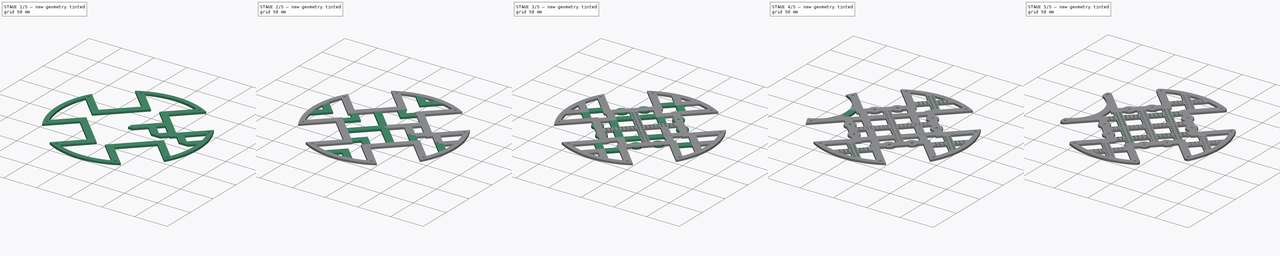
[diagram: build sequence overview — one tinted view per stage of 5, left to right]
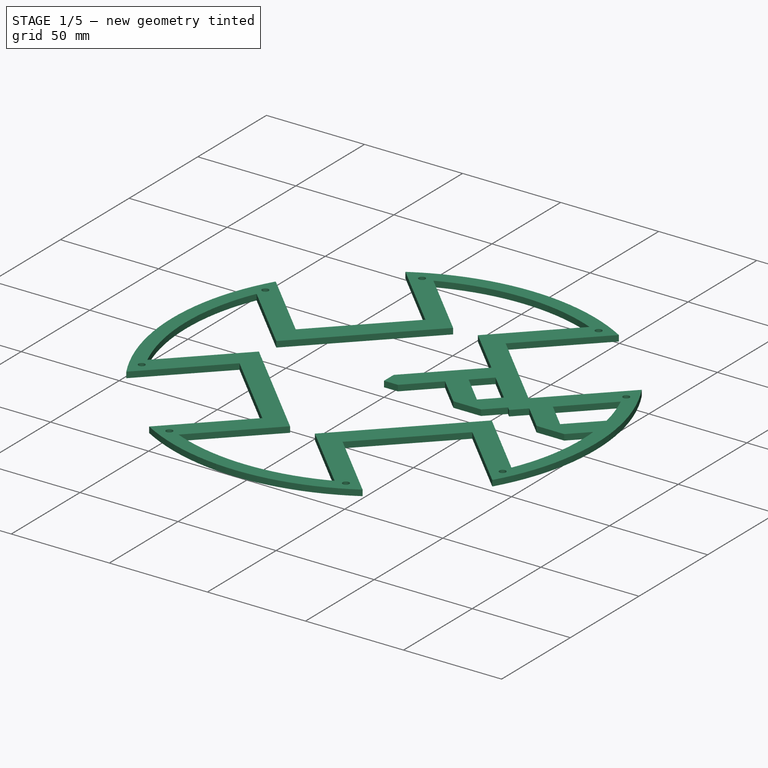
[diagram: stage 1 of 5 — iso view after this stage's code; geometry added in this stage tinted green]
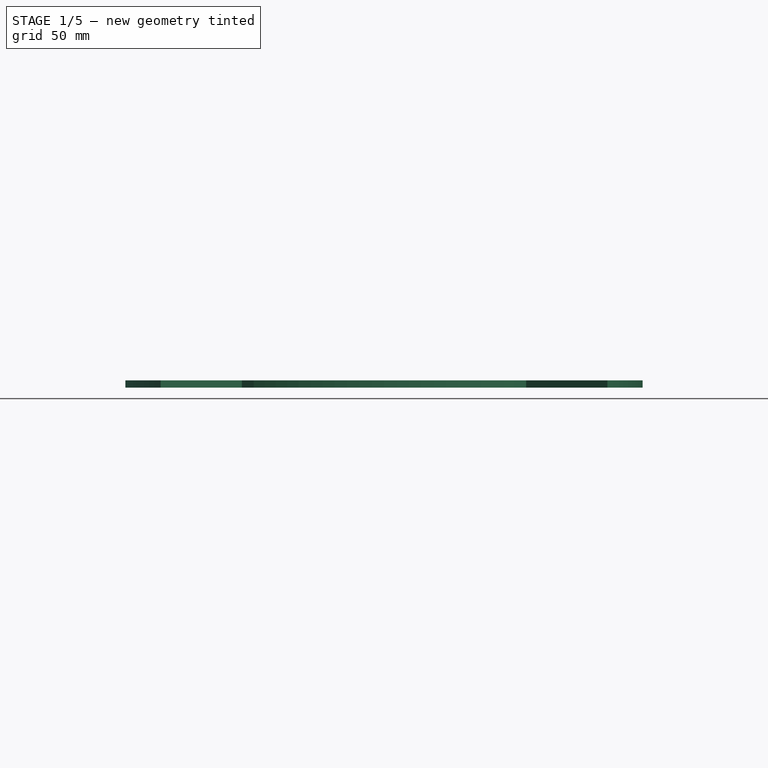
[diagram: stage 1 of 5 — front view after this stage's code; geometry added in this stage tinted green]
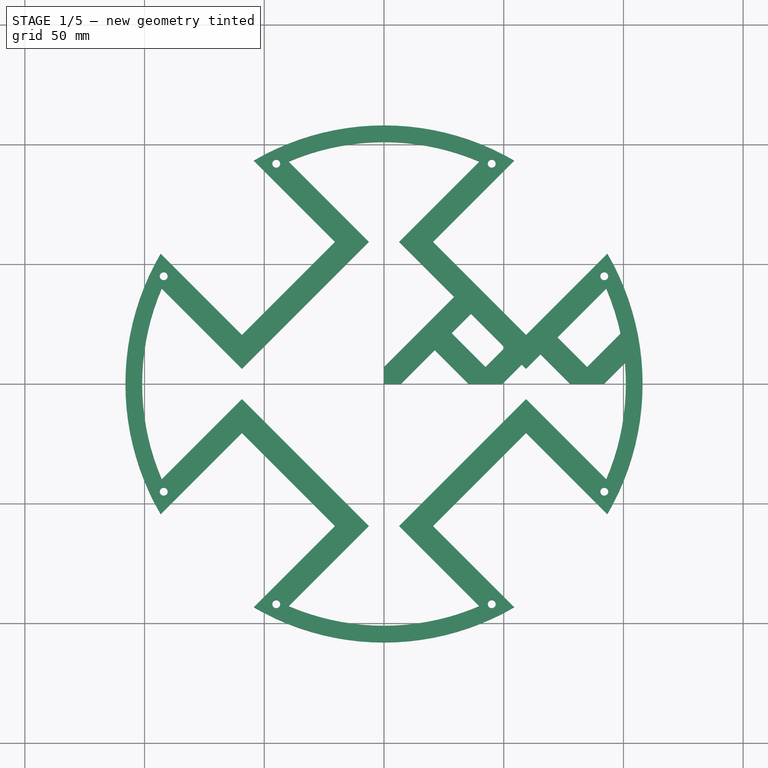
[diagram: stage 1 of 5 — top view after this stage's code; geometry added in this stage tinted green]
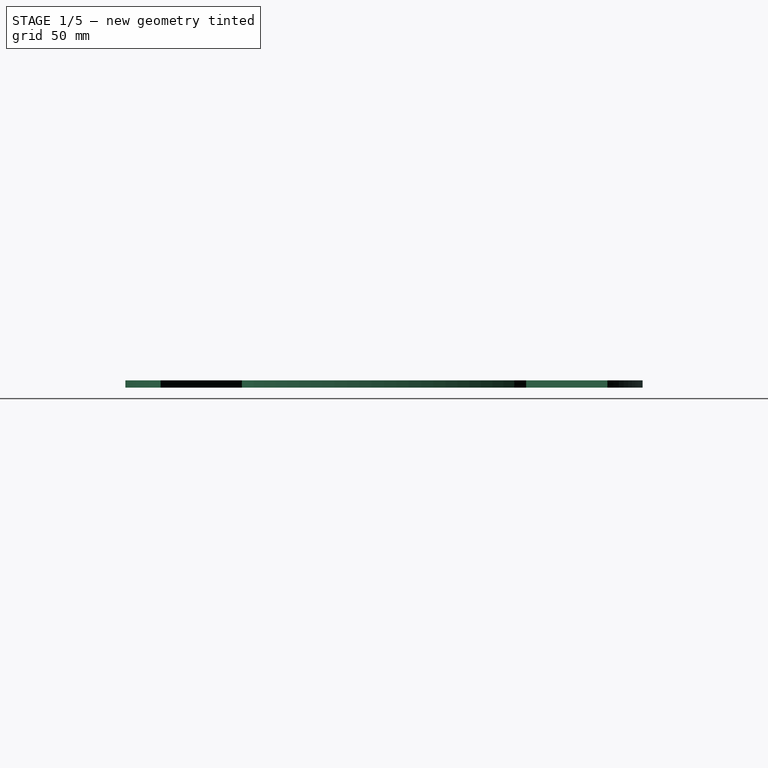
[diagram: stage 1 of 5 — right view after this stage's code; geometry added in this stage tinted green]
FCSTD DOCUMENT  (FreeCAD 0.18.4R)
Label: kat_soccer
License: All rights reserved
LicenseURL: http://en.wikipedia.org/wiki/All_rights_reserved
objects: Sketcher::SketchObject×22, PartDesign::MultiTransform×12, PartDesign::PolarPattern×11, PartDesign::Pocket×10, PartDesign::Mirrored×10, PartDesign::LinearPattern×9, PartDesign::Pad×5, PartDesign::Fillet×2, PartDesign::Body×1, App::MeasureDistance×1
note: 97 computed .brp shape members not serialized (recipe doc carries the construction recipe); baked Part::Feature solids carry a one-line shape summary decoded from their .brp

FEATURE [Sketcher::SketchObject] Sketch
  MapMode = 5
  Support = -> [XY_Plane]
  expr: Constraints[40] = 32 + 16
  expr: Constraints[42] = 2 * 27.5
  sketch-geometry (15):
    g0: LineSegment [constr] StartX=0 StartY=108 StartZ=0 EndX=0 EndY=0 EndZ=0
    g1: LineSegment [constr] StartX=0 StartY=0 StartZ=0 EndX=108 EndY=0 EndZ=0
    g2: ArcOfCircle CenterX=0 CenterY=0 CenterZ=0 NormalX=0 NormalY=0 NormalZ=1 AngleXU=0 Radius=108 StartAngle=1.04286 EndAngle=1.5708
    g3: ArcOfCircle CenterX=0 CenterY=0 CenterZ=0 NormalX=0 NormalY=0 NormalZ=1 AngleXU=0 Radius=108 StartAngle=0 EndAngle=0.527933
    g4: LineSegment StartX=54.4049 StartY=93.2958 StartZ=0 EndX=20.4638 EndY=59.3547 EndZ=0
    g5: LineSegment StartX=20.4638 StartY=59.3547 StartZ=0 EndX=59.3547 EndY=20.4638 EndZ=0
    g6: LineSegment StartX=59.3547 StartY=20.4638 StartZ=0 EndX=93.2958 EndY=54.4049 EndZ=0
    g7: LineSegment StartX=39.7962 StartY=92.8292 StartZ=0 EndX=6.32166 EndY=59.3547 EndZ=0
    g8: LineSegment StartX=6.32166 StartY=59.3547 StartZ=0 EndX=59.3547 EndY=6.32166 EndZ=0
    g9: LineSegment StartX=59.3547 StartY=6.32166 StartZ=0 EndX=92.8292 EndY=39.7962 EndZ=0
    g10: LineSegment StartX=108 StartY=0 StartZ=0 EndX=101 EndY=0 EndZ=0
    g11: LineSegment StartX=0 StartY=108 StartZ=0 EndX=0 EndY=101 EndZ=0
    g12: ArcOfCircle CenterX=0 CenterY=0 CenterZ=0 NormalX=0 NormalY=0 NormalZ=1 AngleXU=0 Radius=101 StartAngle=1.16579 EndAngle=1.5708
    g13: ArcOfCircle CenterX=0 CenterY=0 CenterZ=0 NormalX=0 NormalY=0 NormalZ=1 AngleXU=0 Radius=101 StartAngle=0 EndAngle=0.405003
    g14: LineSegment [constr] StartX=0 StartY=0 StartZ=0 EndX=141.421 EndY=141.421 EndZ=0
  constraints (43):
    c: Coincident(g0,g1)
    c: Coincident(g0,g-1)
    c: PointOnObject(g0,g-2)
    c: PointOnObject(g1,g-1)
    c: Coincident(g3,g2)
    c: Coincident(g3,g0)
    c: Coincident(g3,g1)
    c: Coincident(g2,g0)
    c: Equal(g1,g0)
    c: Coincident(g4,g5)
    c: Coincident(g5,g6)
    c: Coincident(g3,g6)
    c: Parallel(g6,g4)
    c: Coincident(g4,g2)
    c: Perpendicular(g5,g4)
    c: Coincident(g7,g8)
    c: Coincident(g8,g9)
    c: Coincident(g10,g3)
    c: Coincident(g10,g13)
    c: Coincident(g13,g9)
    c: Coincident(g13,g12)
    c: Coincident(g13,g2)
    c: Coincident(g7,g12)
    c: Coincident(g12,g11)
    c: Coincident(g2,g11)
    c: PointOnObject(g11,g0)
    c: PointOnObject(g10,g1)
    c: Parallel(g9,g6)
    c: Parallel(g7,g4)
    c: Parallel(g8,g5)
    c: Equal(g10,g11)
    c: Coincident(g14,g2)
    c: Angle(g14) = 0.785398
    c: Distance(g14) = 200
    c: Parallel(g6,g14)
    c: Symmetric(g3,g2,g14)
    c: Symmetric(g7,g9,g14)
    c: Distance(g4,g8) = 10
    c: Distance(g10) = 7
    c: Distance(g4,g7) = 10
    c: Distance(g6) = 48
    c: Distance(g0) = 108
    c: Distance(g5) = 55
FEATURE [PartDesign::Pad] Pad
  Length = 3
  Length2 = 100
  Profile = -> Sketch
  Type = 0
FEATURE [Sketcher::SketchObject] Sketch001
  MapMode = 5
  Placement = pos=(0,0,0) rot=(1,0,0;3.14159rad)
  Support = -> [Pad]
  sketch-geometry (17):
    g0: LineSegment StartX=0 StartY=0 StartZ=0 EndX=7.07107 EndY=0 EndZ=0
    g1: LineSegment StartX=7.07107 StartY=0 StartZ=0 EndX=36.7696 EndY=-29.6985 EndZ=0
    g2: LineSegment StartX=36.7696 StartY=-29.6985 StartZ=0 EndX=29.6985 EndY=-36.7696 EndZ=0
    g3: LineSegment StartX=29.6985 StartY=-36.7696 StartZ=0 EndX=0 EndY=-7.07107 EndZ=0
    g4: LineSegment StartX=0 StartY=-7.07107 StartZ=0 EndX=0 EndY=0 EndZ=0
    g5: LineSegment StartX=35.3553 StartY=0 StartZ=0 EndX=55.8614 EndY=-20.5061 EndZ=0
    g6: LineSegment StartX=55.8614 StartY=-20.5061 StartZ=0 EndX=62.9325 EndY=-13.435 EndZ=0
    g7: LineSegment StartX=62.9325 StartY=-13.435 StartZ=0 EndX=49.4975 EndY=0 EndZ=0
    g8: LineSegment StartX=49.4975 StartY=0 StartZ=0 EndX=35.3553 EndY=0 EndZ=0
    g9: LineSegment StartX=98.9949 StartY=-21.2132 StartZ=0 EndX=106.066 EndY=-14.1421 EndZ=0
    g10: LineSegment StartX=106.066 StartY=-14.1421 StartZ=0 EndX=91.9239 EndY=0 EndZ=0
    g11: LineSegment StartX=91.9239 StartY=0 StartZ=0 EndX=77.7817 EndY=0 EndZ=0
    g12: LineSegment StartX=77.7817 StartY=0 StartZ=0 EndX=98.9949 EndY=-21.2132 EndZ=0
    g13: LineSegment [constr] StartX=91.9239 StartY=0 StartZ=0 EndX=84.8528 EndY=-7.07107 EndZ=0
    g14: LineSegment [constr] StartX=21.2132 StartY=-14.1421 StartZ=0 EndX=35.3553 EndY=0 EndZ=0
    g15: LineSegment [constr] StartX=77.7817 StartY=0 StartZ=0 EndX=63.6396 EndY=-14.1421 EndZ=0
    g16: LineSegment [constr] StartX=0 StartY=0 StartZ=0 EndX=707.107 EndY=-707.107 EndZ=0
  constraints (50):
    c: Coincident(g0,g1)
    c: Coincident(g1,g2)
    c: Coincident(g2,g3)
    c: Coincident(g3,g4)
    c: Coincident(g4,g0)
    c: Coincident(g4,g-1)
    c: PointOnObject(g0,g-1)
    c: PointOnObject(g3,g-2)
    c: Parallel(g1,g3)
    c: Perpendicular(g3,g2)
    c: Angle(g1) = -0.785398
    c: Equal(g0,g4)
    c: Distance(g2) = 10
    c: Distance(g1) = 42
    c: Coincident(g5,g6)
    c: Coincident(g6,g7)
    c: Coincident(g7,g8)
    c: Coincident(g5,g8)
    c: PointOnObject(g5,g-1)
    c: PointOnObject(g7,g-1)
    c: Parallel(g7,g5)
    c: Parallel(g5,g1)
    c: Parallel(g6,g2)
    c: Coincident(g12,g9)
    c: Coincident(g9,g10)
    c: Coincident(g10,g11)
    c: Coincident(g12,g11)
    c: PointOnObject(g11,g-1)
    c: PointOnObject(g10,g-1)
    c: Parallel(g10,g12)
    c: Parallel(g12,g7)
    c: Coincident(g13,g10)
    c: PointOnObject(g13,g12)
    c: Perpendicular(g12,g13)
    c: Equal(g13,g6)
    c: Equal(g6,g2)
    c: Coincident(g14,g5)
    c: PointOnObject(g14,g1)
    c: Perpendicular(g14,g5)
    c: PointOnObject(g15,g7)
    c: Coincident(g15,g11)
    c: Perpendicular(g7,g15)
    c: Coincident(g16,g0)
    c: Distance(g16) = 1000
    c: Parallel(g16,g1)
    c: Equal(g15,g14)
    c: Distance(g14) = 20
    c: Distance(g7) = 19
    c: Distance(g10) = 20
    c: Parallel(g9,g6)
FEATURE [PartDesign::Pad] Pad001
  BaseFeature = -> Pad
  Length = 3
  Length2 = 100
  Profile = -> Sketch001
  Reversed = true
  Type = 0
FEATURE [Sketcher::SketchObject] Sketch002
  MapMode = 5
  Placement = pos=(0,0,0) rot=(1,0,0;3.14159rad)
  Support = -> [Pad001]
  expr: Constraints[37] = 1 / 2 * 10 + 20
  sketch-geometry (19):
    g0: LineSegment [constr] StartX=0 StartY=0 StartZ=0 EndX=707.107 EndY=-707.107 EndZ=0
    g1: LineSegment StartX=35.3553 StartY=0 StartZ=0 EndX=17.6777 EndY=-17.6777 EndZ=0
    g2: LineSegment StartX=17.6777 StartY=-17.6777 StartZ=0 EndX=24.7487 EndY=-24.7487 EndZ=0
    g3: LineSegment StartX=24.7487 StartY=-24.7487 StartZ=0 EndX=49.4975 EndY=0 EndZ=0
    g4: LineSegment StartX=49.4975 StartY=0 StartZ=0 EndX=35.3553 EndY=0 EndZ=0
    g5: LineSegment StartX=77.7817 StartY=0 StartZ=0 EndX=63.6396 EndY=-14.1421 EndZ=0
    g6: LineSegment StartX=63.6396 StartY=-14.1421 StartZ=0 EndX=70.7107 EndY=-21.2132 EndZ=0
    g7: LineSegment StartX=70.7107 StartY=-21.2132 StartZ=0 EndX=91.9239 EndY=0 EndZ=0
    g8: LineSegment StartX=91.9239 StartY=0 StartZ=0 EndX=77.7817 EndY=0 EndZ=0
    g9: LineSegment [constr] StartX=94.7523 StartY=-25.4558 StartZ=0 EndX=101.823 EndY=-32.5269 EndZ=0
    g10: LineSegment [constr] StartX=101.823 StartY=-32.5269 StartZ=0 EndX=134.35 EndY=0 EndZ=0
    g11: LineSegment [constr] StartX=134.35 StartY=0 StartZ=0 EndX=120.208 EndY=0 EndZ=0
    g12: LineSegment [constr] StartX=49.4975 StartY=0 StartZ=0 EndX=63.6396 EndY=-14.1421 EndZ=0
    g13: LineSegment [constr] StartX=91.9239 StartY=0 StartZ=0 EndX=106.066 EndY=-14.1421 EndZ=0
    g14: LineSegment [constr] StartX=0 StartY=0 StartZ=0 EndX=17.6777 EndY=-17.6777 EndZ=0
    g15: LineSegment [constr] StartX=94.7523 StartY=-25.4558 StartZ=0 EndX=120.208 EndY=0 EndZ=0
    g16: LineSegment [constr] StartX=94.7523 StartY=-25.4558 StartZ=0 EndX=120.208 EndY=0 EndZ=0
    g17: LineSegment [constr] StartX=120.208 StartY=0 StartZ=0 EndX=120.208 EndY=-14.1421 EndZ=0
    g18: LineSegment [constr] StartX=120.208 StartY=-14.1421 StartZ=0 EndX=101.823 EndY=-32.5269 EndZ=0
  constraints (54):
    c: Coincident(g0,g-1)
    c: Angle(g0) = -0.785398
    c: Distance(g0) = 1000
    c: Coincident(g1,g2)
    c: Coincident(g2,g3)
    c: Coincident(g3,g4)
    c: Coincident(g4,g1)
    c: PointOnObject(g1,g-1)
    c: PointOnObject(g3,g-1)
    c: PointOnObject(g2,g0)
    c: PointOnObject(g1,g0)
    c: Parallel(g1,g3)
    c: Perpendicular(g0,g1)
    c: Coincident(g5,g6)
    c: Coincident(g6,g7)
    c: Coincident(g7,g8)
    c: Coincident(g8,g5)
    c: Parallel(g5,g7)
    c: PointOnObject(g5,g-1)
    c: PointOnObject(g7,g-1)
    c: Perpendicular(g0,g7)
    c: Coincident(g9,g10)
    c: Coincident(g10,g11)
    c: PointOnObject(g10,g-1)
    c: PointOnObject(g11,g-1)
    c: Perpendicular(g9,g10)
    c: Parallel(g9,g0)
    c: Equal(g9,g6)
    c: Equal(g6,g2)
    c: Coincident(g12,g3)
    c: PointOnObject(g12,g5)
    c: Coincident(g13,g7)
    c: Perpendicular(g5,g12)
    c: Equal(g13,g12)
    c: Distance(g12) = 20
    c: Distance(g9) = 10
    c: Coincident(g14,g1)
    c: Distance(g14) = 25
    c: Coincident(g14,g-1)
    c: Coincident(g15,g11)
    c: Coincident(g9,g15)
    c: PointOnObject(g13,g15)
    c: Parallel(g15,g7)
    c: Perpendicular(g15,g13)
    c: Coincident(g16,g17)
    c: Coincident(g17,g18)
    c: Coincident(g18,g9)
    c: Coincident(g9,g16)
    c: Coincident(g11,g16)
    c: PointOnObject(g17,g10)
    c: Vertical(g17)
    c: Distance(g18) = 26
    c: Distance(g7) = 30
    c: Perpendicular(g7,g6)
FEATURE [PartDesign::Pad] Pad002
  BaseFeature = -> Pad001
  Length = 3
  Length2 = 100
  Profile = -> Sketch002
  Reversed = true
  Type = 0
FEATURE [PartDesign::PolarPattern] PolarPattern
  Angle = 360
  Axis = -> Sketch [N_Axis]
  BaseFeature = -> Pad002
  Occurrences = 4
  Originals = -> [Pad]
FEATURE [Sketcher::SketchObject] Sketch005
  MapMode = 5
  Placement = pos=(0,0,3) rot=(0,0,1;0rad)
  sketch-geometry (6):
    g0: ArcOfCircle CenterX=-115.233 CenterY=1e-15 CenterZ=0 NormalX=0 NormalY=0 NormalZ=1 AngleXU=0 Radius=43.7757 StartAngle=5.08106 EndAngle=7.48531
    g1: LineSegment [constr] StartX=-99.4569 StartY=40.8343 StartZ=0 EndX=-99.4569 EndY=-40.8343 EndZ=0
    g2: LineSegment [constr] StartX=-99.4569 StartY=0 StartZ=0 EndX=-71.4569 EndY=0 EndZ=0
    g3: LineSegment StartX=-99.4569 StartY=40.8343 StartZ=0 EndX=-181.126 EndY=40.8343 EndZ=0
    g4: LineSegment StartX=-181.126 StartY=40.8343 StartZ=0 EndX=-181.126 EndY=-40.8343 EndZ=0
    g5: LineSegment StartX=-181.126 StartY=-40.8343 StartZ=0 EndX=-99.4569 EndY=-40.8343 EndZ=0
  constraints (17):
    c: Symmetric(g0,g0,g-1)
    c: Coincident(g1,g0)
    c: Coincident(g0,g1)
    c: PointOnObject(g2,g0)
    c: PointOnObject(g2,g1)
    c: PointOnObject(g2,g-1)
    c: PointOnObject(g2,g-1)
    c: Distance(g2) = 28
    c: Coincident(g3,g4)
    c: Coincident(g4,g5)
    c: Coincident(g5,g0)
    c: Coincident(g0,g3)
    c: Symmetric(g3,g4,g-1)
    c: Parallel(g5,g3)
    c: DistanceX(g0) = -99.4569
    c: DistanceY(g0) = 40.8343
    c: Equal(g3,g4)
FEATURE [Sketcher::SketchObject] Sketch006
  MapMode = 5
  Placement = pos=(0,0,3) rot=(0,0,1;0rad)
  sketch-geometry (6):
    g0: ArcOfCircle CenterX=-115.233 CenterY=-2.3e-15 CenterZ=0 NormalX=0 NormalY=0 NormalZ=1 AngleXU=0 Radius=43.7757 StartAngle=5.08106 EndAngle=7.48531
    g1: LineSegment [constr] StartX=-99.4569 StartY=40.8343 StartZ=0 EndX=-99.4569 EndY=-40.8343 EndZ=0
    g2: LineSegment [constr] StartX=-99.4569 StartY=0 StartZ=0 EndX=-71.4569 EndY=0 EndZ=0
    g3: ArcOfCircle CenterX=-115.233 CenterY=-2.3e-15 CenterZ=0 NormalX=0 NormalY=0 NormalZ=1 AngleXU=0 Radius=52.9928 StartAngle=5.40346 EndAngle=7.16291
    g4: LineSegment StartX=-99.4569 StartY=-40.8343 StartZ=0 EndX=-81.4569 EndY=-40.8343 EndZ=0
    g5: LineSegment StartX=-99.4569 StartY=40.8343 StartZ=0 EndX=-81.4569 EndY=40.8343 EndZ=0
  constraints (18):
    c: Symmetric(g0,g0,g-1)
    c: Coincident(g1,g0)
    c: Coincident(g0,g1)
    c: PointOnObject(g2,g0)
    c: PointOnObject(g2,g1)
    c: PointOnObject(g2,g-1)
    c: PointOnObject(g2,g-1)
    c: Distance(g2) = 28
    c: DistanceX(g0) = -99.4569
    c: DistanceY(g0) = 40.8343
    c: Coincident(g3,g0)
    c: Coincident(g4,g3)
    c: Coincident(g4,g0)
    c: Horizontal(g4)
    c: Coincident(g5,g3)
    c: Coincident(g5,g0)
    c: Horizontal(g5)
    c: Distance(g5) = 18
FEATURE [Sketcher::SketchObject] CopySketch006
  Placement = pos=(0,0,3) rot=(0,0,1;0rad)
  sketch-geometry (6):
    g0: ArcOfCircle CenterX=-115.233 CenterY=2.4e-15 CenterZ=0 NormalX=0 NormalY=0 NormalZ=1 AngleXU=0 Radius=43.7757 StartAngle=5.08106 EndAngle=7.48531
    g1: LineSegment [constr] StartX=-99.4569 StartY=40.8343 StartZ=0 EndX=-99.4569 EndY=-40.8343 EndZ=0
    g2: LineSegment [constr] StartX=-99.4569 StartY=0 StartZ=0 EndX=-71.4569 EndY=0 EndZ=0
    g3: ArcOfCircle CenterX=-115.233 CenterY=2.4e-15 CenterZ=0 NormalX=0 NormalY=0 NormalZ=1 AngleXU=0 Radius=52.9928 StartAngle=5.40346 EndAngle=7.16291
    g4: LineSegment StartX=-99.4569 StartY=-40.8343 StartZ=0 EndX=-81.4569 EndY=-40.8343 EndZ=0
    g5: LineSegment StartX=-99.4569 StartY=40.8343 StartZ=0 EndX=-81.4569 EndY=40.8343 EndZ=0
  constraints (18):
    c: Symmetric(g0,g0,g-1)
    c: Coincident(g1,g0)
    c: Coincident(g0,g1)
    c: PointOnObject(g2,g0)
    c: PointOnObject(g2,g1)
    c: PointOnObject(g2,g-1)
    c: PointOnObject(g2,g-1)
    c: Distance(g2) = 28
    c: DistanceX(g0) = -99.4569
    c: DistanceY(g0) = 40.8343
    c: Coincident(g3,g0)
    c: Coincident(g4,g3)
    c: Coincident(g4,g0)
    c: Horizontal(g4)
    c: Coincident(g5,g3)
    c: Coincident(g5,g0)
    c: Horizontal(g5)
    c: Distance(g5) = 18
FEATURE [Sketcher::SketchObject] Sketch008
  MapMode = 5
  Placement = pos=(0,0,3) rot=(0,0,1;0rad)
  sketch-geometry (1):
    g0: Circle CenterX=92 CenterY=45 CenterZ=0 NormalX=0 NormalY=0 NormalZ=1 AngleXU=0 Radius=1.65
  constraints (3):
    c: DistanceX(g0) = 92
    c: DistanceY(g0) = 45
    c: Radius(g0) = 1.65
FEATURE [PartDesign::Pocket] Pocket
  BaseFeature = -> PolarPattern
  Length = 5
  Length2 = 100
  Profile = -> Sketch008
  Type = 0
FEATURE [PartDesign::Mirrored] Mirrored
  MirrorPlane = -> Sketch008 [V_Axis]
FEATURE [PartDesign::PolarPattern] PolarPattern001
  Angle = 360
  Axis = -> Sketch008 [N_Axis]
  Occurrences = 4
FEATURE [PartDesign::MultiTransform] MultiTransform
  BaseFeature = -> Pocket
  Originals = -> [Pocket]
  Transformations = -> [Mirrored,PolarPattern001]
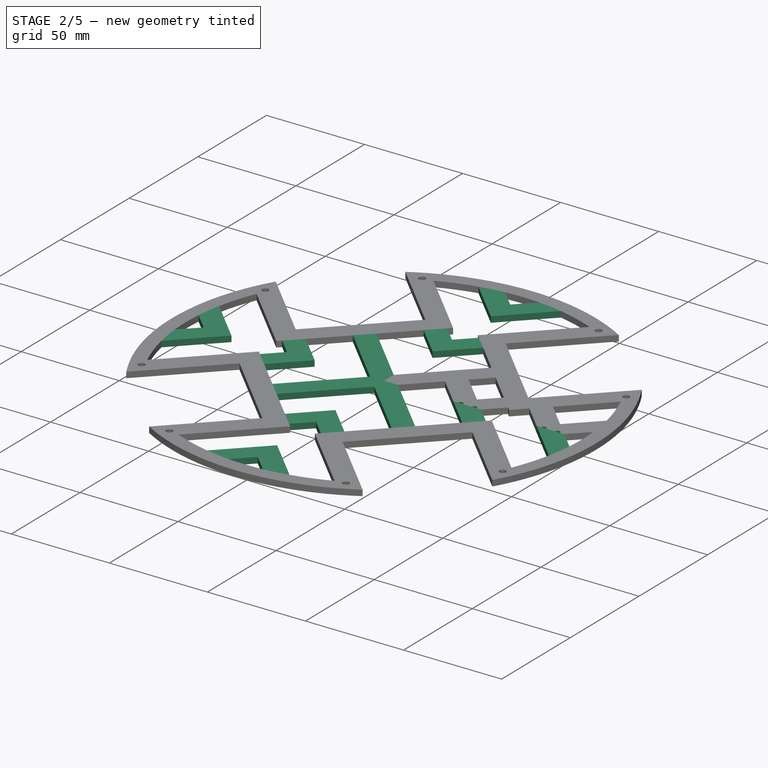
[diagram: stage 2 of 5 — iso view after this stage's code; geometry added in this stage tinted green]
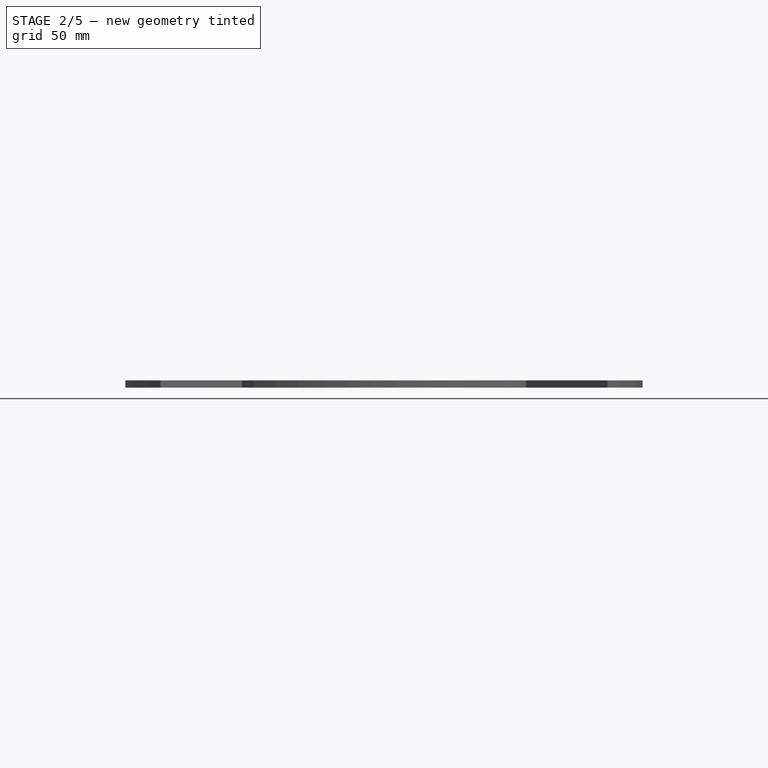
[diagram: stage 2 of 5 — front view after this stage's code; geometry added in this stage tinted green]
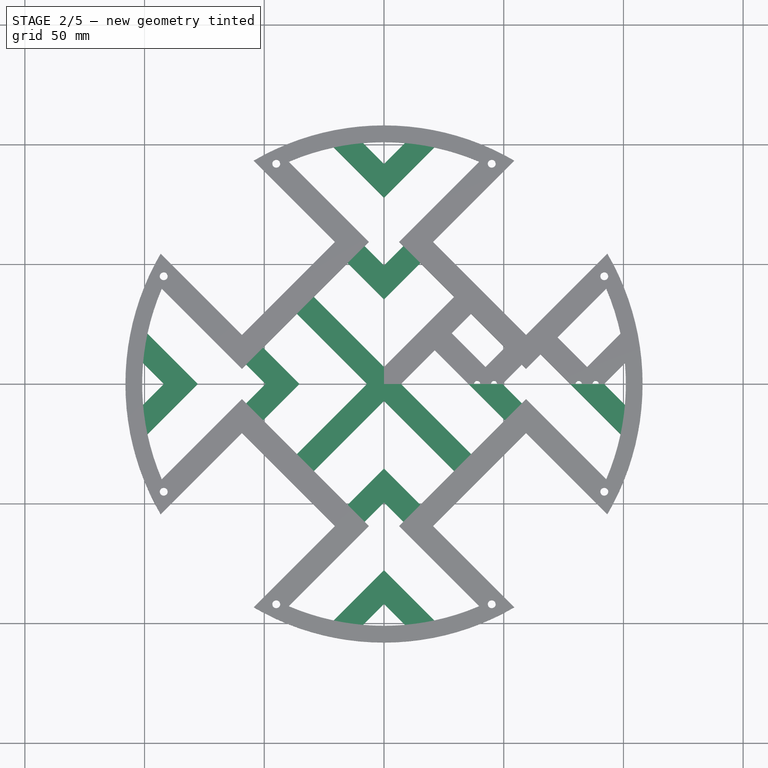
[diagram: stage 2 of 5 — top view after this stage's code; geometry added in this stage tinted green]
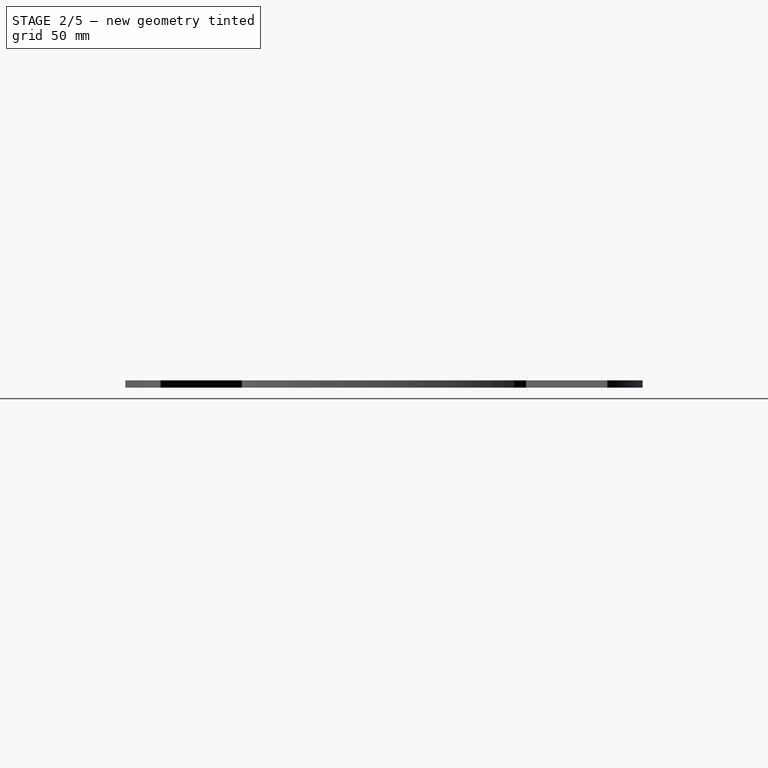
[diagram: stage 2 of 5 — right view after this stage's code; geometry added in this stage tinted green]
FEATURE [Sketcher::SketchObject] Sketch009
  MapMode = 5
  Placement = pos=(0,0,0) rot=(1,0,0;3.14159rad)
  Support = -> [Pad]
  expr: Constraints[51] = 2.5 * sqrt(2)
  sketch-geometry (18):
    g0: LineSegment [constr] StartX=0 StartY=0 StartZ=0 EndX=7.07107 EndY=0 EndZ=0
    g1: LineSegment [constr] StartX=7.07107 StartY=0 StartZ=0 EndX=48.0833 EndY=-41.0122 EndZ=0
    g2: LineSegment [constr] StartX=48.0833 StartY=-41.0122 StartZ=0 EndX=41.0122 EndY=-48.0833 EndZ=0
    g3: LineSegment [constr] StartX=41.0122 StartY=-48.0833 StartZ=0 EndX=0 EndY=-7.07107 EndZ=0
    g4: LineSegment [constr] StartX=0 StartY=-7.07107 StartZ=0 EndX=0 EndY=0 EndZ=0
    g5: LineSegment [constr] StartX=35.3553 StartY=0 StartZ=0 EndX=67.1751 EndY=-31.8198 EndZ=0
    g6: LineSegment [constr] StartX=67.1751 StartY=-31.8198 StartZ=0 EndX=74.2462 EndY=-24.7487 EndZ=0
    g7: LineSegment [constr] StartX=74.2462 StartY=-24.7487 StartZ=0 EndX=49.4975 EndY=0 EndZ=0
    g8: LineSegment [constr] StartX=49.4975 StartY=0 StartZ=0 EndX=35.3553 EndY=0 EndZ=0
    g9: LineSegment [constr] StartX=98.9949 StartY=-21.2132 StartZ=0 EndX=106.066 EndY=-14.1421 EndZ=0
    g10: LineSegment [constr] StartX=106.066 StartY=-14.1421 StartZ=0 EndX=91.9239 EndY=0 EndZ=0
    g11: LineSegment [constr] StartX=91.9239 StartY=0 StartZ=0 EndX=77.7817 EndY=0 EndZ=0
    g12: LineSegment [constr] StartX=77.7817 StartY=0 StartZ=0 EndX=98.9949 EndY=-21.2132 EndZ=0
    g13: LineSegment [constr] StartX=91.9239 StartY=0 StartZ=0 EndX=84.8528 EndY=-7.07107 EndZ=0
    g14: LineSegment [constr] StartX=21.2132 StartY=-14.1421 StartZ=0 EndX=35.3553 EndY=0 EndZ=0
    g15: LineSegment [constr] StartX=77.7817 StartY=0 StartZ=0 EndX=63.6396 EndY=-14.1421 EndZ=0
    g16: LineSegment [constr] StartX=0 StartY=0 StartZ=0 EndX=707.107 EndY=-707.107 EndZ=0
    g17: Circle CenterX=3.53553 CenterY=-8.163e-13 CenterZ=0 NormalX=0 NormalY=0 NormalZ=1 AngleXU=0 Radius=1.3
  constraints (53):
    c: Coincident(g0,g1)
    c: Coincident(g1,g2)
    c: Coincident(g2,g3)
    c: Coincident(g3,g4)
    c: Coincident(g4,g0)
    c: Coincident(g4,g-1)
    c: PointOnObject(g0,g-1)
    c: PointOnObject(g3,g-2)
    c: Parallel(g1,g3)
    c: Perpendicular(g3,g2)
    c: Angle(g1) = -0.785398
    c: Equal(g0,g4)
    c: Distance(g2) = 10
    c: Distance(g1) = 58
    c: Coincident(g5,g6)
    c: Coincident(g6,g7)
    c: Coincident(g7,g8)
    c: Coincident(g5,g8)
    c: PointOnObject(g5,g-1)
    c: PointOnObject(g7,g-1)
    c: Parallel(g7,g5)
    c: Parallel(g5,g1)
    c: Parallel(g6,g2)
    c: Coincident(g12,g9)
    c: Coincident(g9,g10)
    c: Coincident(g10,g11)
    c: Coincident(g12,g11)
    c: PointOnObject(g11,g-1)
    c: PointOnObject(g10,g-1)
    c: Parallel(g10,g12)
    c: Parallel(g12,g7)
    c: Coincident(g13,g10)
    c: PointOnObject(g13,g12)
    c: Perpendicular(g12,g13)
    c: Equal(g13,g6)
    c: Equal(g6,g2)
    c: Coincident(g14,g5)
    c: PointOnObject(g14,g1)
    c: Perpendicular(g14,g5)
    c: PointOnObject(g15,g7)
    c: Coincident(g15,g11)
    c: Perpendicular(g7,g15)
    c: Coincident(g16,g0)
    c: Distance(g16) = 1000
    c: Parallel(g16,g1)
    c: Equal(g15,g14)
    c: Distance(g14) = 20
    c: Distance(g7) = 35
    c: Distance(g10) = 20
    c: Parallel(g9,g6)
    c: PointOnObject(g17,g0)
    c: DistanceX(g17) = 3.53553
    c: Radius(g17) = 1.3
FEATURE [Sketcher::SketchObject] CopySketch009
  Placement = pos=(0,0,0) rot=(1,0,0;3.14159rad)
  expr: Constraints[51] = 2.5 * sqrt(2)
  sketch-geometry (19):
    g0: LineSegment [constr] StartX=0 StartY=0 StartZ=0 EndX=7.07107 EndY=0 EndZ=0
    g1: LineSegment [constr] StartX=7.07107 StartY=0 StartZ=0 EndX=48.0833 EndY=-41.0122 EndZ=0
    g2: LineSegment [constr] StartX=48.0833 StartY=-41.0122 StartZ=0 EndX=41.0122 EndY=-48.0833 EndZ=0
    g3: LineSegment [constr] StartX=41.0122 StartY=-48.0833 StartZ=0 EndX=0 EndY=-7.07107 EndZ=0
    g4: LineSegment [constr] StartX=0 StartY=-7.07107 StartZ=0 EndX=0 EndY=0 EndZ=0
    g5: LineSegment [constr] StartX=35.3553 StartY=0 StartZ=0 EndX=67.1751 EndY=-31.8198 EndZ=0
    g6: LineSegment [constr] StartX=67.1751 StartY=-31.8198 StartZ=0 EndX=74.2462 EndY=-24.7487 EndZ=0
    g7: LineSegment [constr] StartX=74.2462 StartY=-24.7487 StartZ=0 EndX=49.4975 EndY=0 EndZ=0
    g8: LineSegment [constr] StartX=49.4975 StartY=0 StartZ=0 EndX=35.3553 EndY=0 EndZ=0
    g9: LineSegment [constr] StartX=98.9949 StartY=-21.2132 StartZ=0 EndX=106.066 EndY=-14.1421 EndZ=0
    g10: LineSegment [constr] StartX=106.066 StartY=-14.1421 StartZ=0 EndX=91.9239 EndY=0 EndZ=0
    g11: LineSegment [constr] StartX=91.9239 StartY=0 StartZ=0 EndX=77.7817 EndY=0 EndZ=0
    g12: LineSegment [constr] StartX=77.7817 StartY=0 StartZ=0 EndX=98.9949 EndY=-21.2132 EndZ=0
    g13: LineSegment [constr] StartX=91.9239 StartY=0 StartZ=0 EndX=84.8528 EndY=-7.07107 EndZ=0
    g14: LineSegment [constr] StartX=21.2132 StartY=-14.1421 StartZ=0 EndX=35.3553 EndY=0 EndZ=0
    g15: LineSegment [constr] StartX=77.7817 StartY=0 StartZ=0 EndX=63.6396 EndY=-14.1421 EndZ=0
    g16: LineSegment [constr] StartX=0 StartY=0 StartZ=0 EndX=707.107 EndY=-707.107 EndZ=0
    g17: Circle CenterX=3.53553 CenterY=0 CenterZ=0 NormalX=0 NormalY=0 NormalZ=1 AngleXU=0 Radius=1.3
    g18: LineSegment [constr] StartX=3.53553 StartY=0 StartZ=0 EndX=10.6066 EndY=-7.07107 EndZ=0
  constraints (56):
    c: Coincident(g0,g1)
    c: Coincident(g1,g2)
    c: Coincident(g2,g3)
    c: Coincident(g3,g4)
    c: Coincident(g4,g0)
    c: Coincident(g4,g-1)
    c: PointOnObject(g0,g-1)
    c: PointOnObject(g3,g-2)
    c: Parallel(g1,g3)
    c: Perpendicular(g3,g2)
    c: Angle(g1) = -0.785398
    c: Equal(g0,g4)
    c: Distance(g2) = 10
    c: Distance(g1) = 58
    c: Coincident(g5,g6)
    c: Coincident(g6,g7)
    c: Coincident(g7,g8)
    c: Coincident(g5,g8)
    c: PointOnObject(g5,g-1)
    c: PointOnObject(g7,g-1)
    c: Parallel(g7,g5)
    c: Parallel(g5,g1)
    c: Parallel(g6,g2)
    c: Coincident(g12,g9)
    c: Coincident(g9,g10)
    c: Coincident(g10,g11)
    c: Coincident(g12,g11)
    c: PointOnObject(g11,g-1)
    c: PointOnObject(g10,g-1)
    c: Parallel(g10,g12)
    c: Parallel(g12,g7)
    c: Coincident(g13,g10)
    c: PointOnObject(g13,g12)
    c: Perpendicular(g12,g13)
    c: Equal(g13,g6)
    c: Equal(g6,g2)
    c: Coincident(g14,g5)
    c: PointOnObject(g14,g1)
    c: Perpendicular(g14,g5)
    c: PointOnObject(g15,g7)
    c: Coincident(g15,g11)
    c: Perpendicular(g7,g15)
    c: Coincident(g16,g0)
    c: Distance(g16) = 1000
    c: Parallel(g16,g1)
    c: Equal(g15,g14)
    c: Distance(g14) = 20
    c: Distance(g7) = 35
    c: Distance(g10) = 20
    c: Parallel(g9,g6)
    c: PointOnObject(g17,g0)
    c: DistanceX(g17) = 3.53553
    c: Radius(g17) = 1.3
    c: Coincident(g18,g17)
    c: Parallel(g18,g16)
    c: Distance(g18) = 10
FEATURE [Sketcher::SketchObject] CopyCopySketch009
  Placement = pos=(0,0,0) rot=(1,0,0;3.14159rad)
  expr: Constraints[51] = 2.5 * sqrt(2)
  sketch-geometry (19):
    g0: LineSegment [constr] StartX=0 StartY=0 StartZ=0 EndX=7.07107 EndY=0 EndZ=0
    g1: LineSegment [constr] StartX=7.07107 StartY=0 StartZ=0 EndX=48.0833 EndY=-41.0122 EndZ=0
    g2: LineSegment [constr] StartX=48.0833 StartY=-41.0122 StartZ=0 EndX=41.0122 EndY=-48.0833 EndZ=0
    g3: LineSegment [constr] StartX=41.0122 StartY=-48.0833 StartZ=0 EndX=0 EndY=-7.07107 EndZ=0
    g4: LineSegment [constr] StartX=0 StartY=-7.07107 StartZ=0 EndX=0 EndY=0 EndZ=0
    g5: LineSegment [constr] StartX=35.3553 StartY=0 StartZ=0 EndX=67.1751 EndY=-31.8198 EndZ=0
    g6: LineSegment [constr] StartX=67.1751 StartY=-31.8198 StartZ=0 EndX=74.2462 EndY=-24.7487 EndZ=0
    g7: LineSegment [constr] StartX=74.2462 StartY=-24.7487 StartZ=0 EndX=49.4975 EndY=0 EndZ=0
    g8: LineSegment [constr] StartX=49.4975 StartY=0 StartZ=0 EndX=35.3553 EndY=0 EndZ=0
    g9: LineSegment [constr] StartX=98.9949 StartY=-21.2132 StartZ=0 EndX=106.066 EndY=-14.1421 EndZ=0
    g10: LineSegment [constr] StartX=106.066 StartY=-14.1421 StartZ=0 EndX=91.9239 EndY=0 EndZ=0
    g11: LineSegment [constr] StartX=91.9239 StartY=0 StartZ=0 EndX=77.7817 EndY=0 EndZ=0
    g12: LineSegment [constr] StartX=77.7817 StartY=0 StartZ=0 EndX=98.9949 EndY=-21.2132 EndZ=0
    g13: LineSegment [constr] StartX=91.9239 StartY=0 StartZ=0 EndX=84.8528 EndY=-7.07107 EndZ=0
    g14: LineSegment [constr] StartX=21.2132 StartY=-14.1421 StartZ=0 EndX=35.3553 EndY=0 EndZ=0
    g15: LineSegment [constr] StartX=77.7817 StartY=0 StartZ=0 EndX=63.6396 EndY=-14.1421 EndZ=0
    g16: LineSegment [constr] StartX=0 StartY=0 StartZ=0 EndX=707.107 EndY=-707.107 EndZ=0
    g17: Circle CenterX=3.53553 CenterY=0 CenterZ=0 NormalX=0 NormalY=0 NormalZ=1 AngleXU=0 Radius=1.3
    g18: LineSegment [constr] StartX=3.53553 StartY=0 StartZ=0 EndX=10.6066 EndY=-7.07107 EndZ=0
  constraints (56):
    c: Coincident(g0,g1)
    c: Coincident(g1,g2)
    c: Coincident(g2,g3)
    c: Coincident(g3,g4)
    c: Coincident(g4,g0)
    c: Coincident(g4,g-1)
    c: PointOnObject(g0,g-1)
    c: PointOnObject(g3,g-2)
    c: Parallel(g1,g3)
    c: Perpendicular(g3,g2)
    c: Angle(g1) = -0.785398
    c: Equal(g0,g4)
    c: Distance(g2) = 10
    c: Distance(g1) = 58
    c: Coincident(g5,g6)
    c: Coincident(g6,g7)
    c: Coincident(g7,g8)
    c: Coincident(g5,g8)
    c: PointOnObject(g5,g-1)
    c: PointOnObject(g7,g-1)
    c: Parallel(g7,g5)
    c: Parallel(g5,g1)
    c: Parallel(g6,g2)
    c: Coincident(g12,g9)
    c: Coincident(g9,g10)
    c: Coincident(g10,g11)
    c: Coincident(g12,g11)
    c: PointOnObject(g11,g-1)
    c: PointOnObject(g10,g-1)
    c: Parallel(g10,g12)
    c: Parallel(g12,g7)
    c: Coincident(g13,g10)
    c: PointOnObject(g13,g12)
    c: Perpendicular(g12,g13)
    c: Equal(g13,g6)
    c: Equal(g6,g2)
    c: Coincident(g14,g5)
    c: PointOnObject(g14,g1)
    c: Perpendicular(g14,g5)
    c: PointOnObject(g15,g7)
    c: Coincident(g15,g11)
    c: Perpendicular(g7,g15)
    c: Coincident(g16,g0)
    c: Distance(g16) = 1000
    c: Parallel(g16,g1)
    c: Equal(g15,g14)
    c: Distance(g14) = 20
    c: Distance(g7) = 35
    c: Distance(g10) = 20
    c: Parallel(g9,g6)
    c: PointOnObject(g17,g0)
    c: DistanceX(g17) = 3.53553
    c: Radius(g17) = 1.3
    c: Coincident(g18,g17)
    c: Parallel(g18,g16)
    c: Distance(g18) = 10
FEATURE [PartDesign::Pocket] Pocket001
  BaseFeature = -> MultiTransform
  Length = 5
  Length2 = 100
  Profile = -> CopyCopySketch009
  Type = 0
FEATURE [Sketcher::SketchObject] CopySketch010
  Placement = pos=(0,0,0) rot=(1,0,0;3.14159rad)
  expr: Constraints[51] = (5 + 20 + 7.5) * sqrt(2)
  sketch-geometry (19):
    g0: LineSegment [constr] StartX=0 StartY=0 StartZ=0 EndX=7.07107 EndY=0 EndZ=0
    g1: LineSegment [constr] StartX=7.07107 StartY=0 StartZ=0 EndX=48.0833 EndY=-41.0122 EndZ=0
    g2: LineSegment [constr] StartX=48.0833 StartY=-41.0122 StartZ=0 EndX=41.0122 EndY=-48.0833 EndZ=0
    g3: LineSegment [constr] StartX=41.0122 StartY=-48.0833 StartZ=0 EndX=0 EndY=-7.07107 EndZ=0
    g4: LineSegment [constr] StartX=0 StartY=-7.07107 StartZ=0 EndX=0 EndY=0 EndZ=0
    g5: LineSegment [constr] StartX=35.3553 StartY=0 StartZ=0 EndX=67.1751 EndY=-31.8198 EndZ=0
    g6: LineSegment [constr] StartX=67.1751 StartY=-31.8198 StartZ=0 EndX=74.2462 EndY=-24.7487 EndZ=0
    g7: LineSegment [constr] StartX=74.2462 StartY=-24.7487 StartZ=0 EndX=49.4975 EndY=0 EndZ=0
    g8: LineSegment [constr] StartX=49.4975 StartY=0 StartZ=0 EndX=35.3553 EndY=0 EndZ=0
    g9: LineSegment [constr] StartX=98.9949 StartY=-21.2132 StartZ=0 EndX=106.066 EndY=-14.1421 EndZ=0
    g10: LineSegment [constr] StartX=106.066 StartY=-14.1421 StartZ=0 EndX=91.9239 EndY=0 EndZ=0
    g11: LineSegment [constr] StartX=91.9239 StartY=0 StartZ=0 EndX=77.7817 EndY=0 EndZ=0
    g12: LineSegment [constr] StartX=77.7817 StartY=0 StartZ=0 EndX=98.9949 EndY=-21.2132 EndZ=0
    g13: LineSegment [constr] StartX=91.9239 StartY=0 StartZ=0 EndX=84.8528 EndY=-7.07107 EndZ=0
    g14: LineSegment [constr] StartX=21.2132 StartY=-14.1421 StartZ=0 EndX=35.3553 EndY=0 EndZ=0
    g15: LineSegment [constr] StartX=77.7817 StartY=0 StartZ=0 EndX=63.6396 EndY=-14.1421 EndZ=0
    g16: LineSegment [constr] StartX=0 StartY=0 StartZ=0 EndX=707.107 EndY=-707.107 EndZ=0
    g17: Circle CenterX=45.9619 CenterY=0 CenterZ=0 NormalX=0 NormalY=0 NormalZ=1 AngleXU=0 Radius=1.3
    g18: LineSegment [constr] StartX=45.9619 StartY=0 StartZ=0 EndX=38.8909 EndY=7.07107 EndZ=0
  constraints (56):
    c: Coincident(g0,g1)
    c: Coincident(g1,g2)
    c: Coincident(g2,g3)
    c: Coincident(g3,g4)
    c: Coincident(g4,g0)
    c: Coincident(g4,g-1)
    c: PointOnObject(g0,g-1)
    c: PointOnObject(g3,g-2)
    c: Parallel(g1,g3)
    c: Perpendicular(g3,g2)
    c: Angle(g1) = -0.785398
    c: Equal(g0,g4)
    c: Distance(g2) = 10
    c: Distance(g1) = 58
    c: Coincident(g5,g6)
    c: Coincident(g6,g7)
    c: Coincident(g7,g8)
    c: Coincident(g5,g8)
    c: PointOnObject(g5,g-1)
    c: PointOnObject(g7,g-1)
    c: Parallel(g7,g5)
    c: Parallel(g5,g1)
    c: Parallel(g6,g2)
    c: Coincident(g12,g9)
    c: Coincident(g9,g10)
    c: Coincident(g10,g11)
    c: Coincident(g12,g11)
    c: PointOnObject(g11,g-1)
    c: PointOnObject(g10,g-1)
    c: Parallel(g10,g12)
    c: Parallel(g12,g7)
    c: Coincident(g13,g10)
    c: PointOnObject(g13,g12)
    c: Perpendicular(g12,g13)
    c: Equal(g13,g6)
    c: Equal(g6,g2)
    c: Coincident(g14,g5)
    c: PointOnObject(g14,g1)
    c: Perpendicular(g14,g5)
    c: PointOnObject(g15,g7)
    c: Coincident(g15,g11)
    c: Perpendicular(g7,g15)
    c: Coincident(g16,g0)
    c: Distance(g16) = 1000
    c: Parallel(g16,g1)
    c: Equal(g15,g14)
    c: Distance(g14) = 20
    c: Distance(g7) = 35
    c: Distance(g10) = 20
    c: Parallel(g9,g6)
    c: PointOnObject(g17,g0)
    c: DistanceX(g17) = 45.9619
    c: Radius(g17) = 1.3
    c: Coincident(g18,g17)
    c: Parallel(g18,g16)
    c: Distance(g18) = 10
FEATURE [Sketcher::SketchObject] CopyCopySketch010
  Placement = pos=(0,0,0) rot=(1,0,0;3.14159rad)
  expr: Constraints[51] = (5 + 20 + 2.5) * sqrt(2)
  sketch-geometry (19):
    g0: LineSegment [constr] StartX=0 StartY=0 StartZ=0 EndX=7.07107 EndY=0 EndZ=0
    g1: LineSegment [constr] StartX=7.07107 StartY=0 StartZ=0 EndX=48.0833 EndY=-41.0122 EndZ=0
    g2: LineSegment [constr] StartX=48.0833 StartY=-41.0122 StartZ=0 EndX=41.0122 EndY=-48.0833 EndZ=0
    g3: LineSegment [constr] StartX=41.0122 StartY=-48.0833 StartZ=0 EndX=0 EndY=-7.07107 EndZ=0
    g4: LineSegment [constr] StartX=0 StartY=-7.07107 StartZ=0 EndX=0 EndY=0 EndZ=0
    g5: LineSegment [constr] StartX=35.3553 StartY=0 StartZ=0 EndX=67.1751 EndY=-31.8198 EndZ=0
    g6: LineSegment [constr] StartX=67.1751 StartY=-31.8198 StartZ=0 EndX=74.2462 EndY=-24.7487 EndZ=0
    g7: LineSegment [constr] StartX=74.2462 StartY=-24.7487 StartZ=0 EndX=49.4975 EndY=3.6e-15 EndZ=0
    g8: LineSegment [constr] StartX=49.4975 StartY=0 StartZ=0 EndX=35.3553 EndY=0 EndZ=0
    g9: LineSegment [constr] StartX=98.9949 StartY=-21.2132 StartZ=0 EndX=106.066 EndY=-14.1421 EndZ=0
    g10: LineSegment [constr] StartX=106.066 StartY=-14.1421 StartZ=0 EndX=91.9239 EndY=0 EndZ=0
    g11: LineSegment [constr] StartX=91.9239 StartY=0 StartZ=0 EndX=77.7817 EndY=0 EndZ=0
    g12: LineSegment [constr] StartX=77.7817 StartY=0 StartZ=0 EndX=98.9949 EndY=-21.2132 EndZ=0
    g13: LineSegment [constr] StartX=91.9239 StartY=0 StartZ=0 EndX=84.8528 EndY=-7.07107 EndZ=0
    g14: LineSegment [constr] StartX=21.2132 StartY=-14.1421 StartZ=0 EndX=35.3553 EndY=0 EndZ=0
    g15: LineSegment [constr] StartX=77.7817 StartY=0 StartZ=0 EndX=63.6396 EndY=-14.1421 EndZ=0
    g16: LineSegment [constr] StartX=0 StartY=0 StartZ=0 EndX=707.107 EndY=-707.107 EndZ=0
    g17: Circle CenterX=38.8909 CenterY=0 CenterZ=0 NormalX=0 NormalY=0 NormalZ=1 AngleXU=0 Radius=1.3
    g18: LineSegment [constr] StartX=38.8909 StartY=0 StartZ=0 EndX=45.9619 EndY=-7.07107 EndZ=0
  constraints (56):
    c: Coincident(g0,g1)
    c: Coincident(g1,g2)
    c: Coincident(g2,g3)
    c: Coincident(g3,g4)
    c: Coincident(g4,g0)
    c: Coincident(g4,g-1)
    c: PointOnObject(g0,g-1)
    c: PointOnObject(g3,g-2)
    c: Parallel(g1,g3)
    c: Perpendicular(g3,g2)
    c: Angle(g1) = -0.785398
    c: Equal(g0,g4)
    c: Distance(g2) = 10
    c: Distance(g1) = 58
    c: Coincident(g5,g6)
    c: Coincident(g6,g7)
    c: Coincident(g7,g8)
    c: Coincident(g5,g8)
    c: PointOnObject(g5,g-1)
    c: PointOnObject(g7,g-1)
    c: Parallel(g7,g5)
    c: Parallel(g5,g1)
    c: Parallel(g6,g2)
    c: Coincident(g12,g9)
    c: Coincident(g9,g10)
    c: Coincident(g10,g11)
    c: Coincident(g12,g11)
    c: PointOnObject(g11,g-1)
    c: PointOnObject(g10,g-1)
    c: Parallel(g10,g12)
    c: Parallel(g12,g7)
    c: Coincident(g13,g10)
    c: PointOnObject(g13,g12)
    c: Perpendicular(g12,g13)
    c: Equal(g13,g6)
    c: Equal(g6,g2)
    c: Coincident(g14,g5)
    c: PointOnObject(g14,g1)
    c: Perpendicular(g14,g5)
    c: PointOnObject(g15,g7)
    c: Coincident(g15,g11)
    c: Perpendicular(g7,g15)
    c: Coincident(g16,g0)
    c: Distance(g16) = 1000
    c: Parallel(g16,g1)
    c: Equal(g15,g14)
    c: Distance(g14) = 20
    c: Distance(g7) = 35
    c: Distance(g10) = 20
    c: Parallel(g9,g6)
    c: PointOnObject(g17,g0)
    c: DistanceX(g17) = 38.8909
    c: Radius(g17) = 1.3
    c: Coincident(g18,g17)
    c: Parallel(g18,g16)
    c: Distance(g18) = 10
FEATURE [PartDesign::Pocket] Pocket002
  BaseFeature = -> Pocket001
  Length = 5
  Length2 = 100
  Profile = -> CopyCopySketch010
  Type = 0
FEATURE [Sketcher::SketchObject] CopySketch011
  Placement = pos=(0,0,0) rot=(1,0,0;3.14159rad)
  expr: Constraints[51] = (5 + 20 + 2.5) * sqrt(2)
  sketch-geometry (19):
    g0: LineSegment [constr] StartX=0 StartY=0 StartZ=0 EndX=7.07107 EndY=0 EndZ=0
    g1: LineSegment [constr] StartX=7.07107 StartY=0 StartZ=0 EndX=48.0833 EndY=-41.0122 EndZ=0
    g2: LineSegment [constr] StartX=48.0833 StartY=-41.0122 StartZ=0 EndX=41.0122 EndY=-48.0833 EndZ=0
    g3: LineSegment [constr] StartX=41.0122 StartY=-48.0833 StartZ=0 EndX=0 EndY=-7.07107 EndZ=0
    g4: LineSegment [constr] StartX=0 StartY=-7.07107 StartZ=0 EndX=0 EndY=0 EndZ=0
    g5: LineSegment [constr] StartX=35.3553 StartY=0 StartZ=0 EndX=67.1751 EndY=-31.8198 EndZ=0
    g6: LineSegment [constr] StartX=67.1751 StartY=-31.8198 StartZ=0 EndX=74.2462 EndY=-24.7487 EndZ=0
    g7: LineSegment [constr] StartX=74.2462 StartY=-24.7487 StartZ=0 EndX=49.4975 EndY=3.6e-15 EndZ=0
    g8: LineSegment [constr] StartX=49.4975 StartY=0 StartZ=0 EndX=35.3553 EndY=0 EndZ=0
    g9: LineSegment [constr] StartX=98.9949 StartY=-21.2132 StartZ=0 EndX=106.066 EndY=-14.1421 EndZ=0
    g10: LineSegment [constr] StartX=106.066 StartY=-14.1421 StartZ=0 EndX=91.9239 EndY=0 EndZ=0
    g11: LineSegment [constr] StartX=91.9239 StartY=0 StartZ=0 EndX=77.7817 EndY=0 EndZ=0
    g12: LineSegment [constr] StartX=77.7817 StartY=0 StartZ=0 EndX=98.9949 EndY=-21.2132 EndZ=0
    g13: LineSegment [constr] StartX=91.9239 StartY=0 StartZ=0 EndX=84.8528 EndY=-7.07107 EndZ=0
    g14: LineSegment [constr] StartX=21.2132 StartY=-14.1421 StartZ=0 EndX=35.3553 EndY=0 EndZ=0
    g15: LineSegment [constr] StartX=77.7817 StartY=0 StartZ=0 EndX=63.6396 EndY=-14.1421 EndZ=0
    g16: LineSegment [constr] StartX=0 StartY=0 StartZ=0 EndX=707.107 EndY=-707.107 EndZ=0
    g17: Circle CenterX=38.8909 CenterY=0 CenterZ=0 NormalX=0 NormalY=0 NormalZ=1 AngleXU=0 Radius=1.3
    g18: LineSegment [constr] StartX=38.8909 StartY=0 StartZ=0 EndX=45.9619 EndY=-7.07107 EndZ=0
  constraints (56):
    c: Coincident(g0,g1)
    c: Coincident(g1,g2)
    c: Coincident(g2,g3)
    c: Coincident(g3,g4)
    c: Coincident(g4,g0)
    c: Coincident(g4,g-1)
    c: PointOnObject(g0,g-1)
    c: PointOnObject(g3,g-2)
    c: Parallel(g1,g3)
    c: Perpendicular(g3,g2)
    c: Angle(g1) = -0.785398
    c: Equal(g0,g4)
    c: Distance(g2) = 10
    c: Distance(g1) = 58
    c: Coincident(g5,g6)
    c: Coincident(g6,g7)
    c: Coincident(g7,g8)
    c: Coincident(g5,g8)
    c: PointOnObject(g5,g-1)
    c: PointOnObject(g7,g-1)
    c: Parallel(g7,g5)
    c: Parallel(g5,g1)
    c: Parallel(g6,g2)
    c: Coincident(g12,g9)
    c: Coincident(g9,g10)
    c: Coincident(g10,g11)
    c: Coincident(g12,g11)
    c: PointOnObject(g11,g-1)
    c: PointOnObject(g10,g-1)
    c: Parallel(g10,g12)
    c: Parallel(g12,g7)
    c: Coincident(g13,g10)
    c: PointOnObject(g13,g12)
    c: Perpendicular(g12,g13)
    c: Equal(g13,g6)
    c: Equal(g6,g2)
    c: Coincident(g14,g5)
    c: PointOnObject(g14,g1)
    c: Perpendicular(g14,g5)
    c: PointOnObject(g15,g7)
    c: Coincident(g15,g11)
    c: Perpendicular(g7,g15)
    c: Coincident(g16,g0)
    c: Distance(g16) = 1000
    c: Parallel(g16,g1)
    c: Equal(g15,g14)
    c: Distance(g14) = 20
    c: Distance(g7) = 35
    c: Distance(g10) = 20
    c: Parallel(g9,g6)
    c: PointOnObject(g17,g0)
    c: DistanceX(g17) = 38.8909
    c: Radius(g17) = 1.3
    c: Coincident(g18,g17)
    c: Parallel(g18,g16)
    c: Distance(g18) = 10
FEATURE [Sketcher::SketchObject] CopyCopySketch010001  label="CopyCopySketch011"
  Placement = pos=(0,0,0) rot=(1,0,0;3.14159rad)
  expr: Constraints[51] = (5 + 20 + 10 + 20 + 2.5) * sqrt(2)
  sketch-geometry (19):
    g0: LineSegment [constr] StartX=0 StartY=0 StartZ=0 EndX=7.07107 EndY=0 EndZ=0
    g1: LineSegment [constr] StartX=7.07107 StartY=0 StartZ=0 EndX=48.0833 EndY=-41.0122 EndZ=0
    g2: LineSegment [constr] StartX=48.0833 StartY=-41.0122 StartZ=0 EndX=41.0122 EndY=-48.0833 EndZ=0
    g3: LineSegment [constr] StartX=41.0122 StartY=-48.0833 StartZ=0 EndX=0 EndY=-7.07107 EndZ=0
    g4: LineSegment [constr] StartX=0 StartY=-7.07107 StartZ=0 EndX=0 EndY=0 EndZ=0
    g5: LineSegment [constr] StartX=35.3553 StartY=0 StartZ=0 EndX=67.1751 EndY=-31.8198 EndZ=0
    g6: LineSegment [constr] StartX=67.1751 StartY=-31.8198 StartZ=0 EndX=74.2462 EndY=-24.7487 EndZ=0
    g7: LineSegment [constr] StartX=74.2462 StartY=-24.7487 StartZ=0 EndX=49.4975 EndY=0 EndZ=0
    g8: LineSegment [constr] StartX=49.4975 StartY=0 StartZ=0 EndX=35.3553 EndY=0 EndZ=0
    g9: LineSegment [constr] StartX=98.9949 StartY=-21.2132 StartZ=0 EndX=106.066 EndY=-14.1421 EndZ=0
    g10: LineSegment [constr] StartX=106.066 StartY=-14.1421 StartZ=0 EndX=91.9239 EndY=0 EndZ=0
    g11: LineSegment [constr] StartX=91.9239 StartY=0 StartZ=0 EndX=77.7817 EndY=0 EndZ=0
    g12: LineSegment [constr] StartX=77.7817 StartY=0 StartZ=0 EndX=98.9949 EndY=-21.2132 EndZ=0
    g13: LineSegment [constr] StartX=91.9239 StartY=0 StartZ=0 EndX=84.8528 EndY=-7.07107 EndZ=0
    g14: LineSegment [constr] StartX=21.2132 StartY=-14.1421 StartZ=0 EndX=35.3553 EndY=0 EndZ=0
    g15: LineSegment [constr] StartX=77.7817 StartY=0 StartZ=0 EndX=63.6396 EndY=-14.1421 EndZ=0
    g16: LineSegment [constr] StartX=0 StartY=0 StartZ=0 EndX=707.107 EndY=-707.107 EndZ=0
    g17: Circle CenterX=81.3173 CenterY=0 CenterZ=0 NormalX=0 NormalY=0 NormalZ=1 AngleXU=0 Radius=1.3
    g18: LineSegment [constr] StartX=81.3173 StartY=0 StartZ=0 EndX=74.2462 EndY=7.07107 EndZ=0
  constraints (56):
    c: Coincident(g0,g1)
    c: Coincident(g1,g2)
    c: Coincident(g2,g3)
    c: Coincident(g3,g4)
    c: Coincident(g4,g0)
    c: Coincident(g4,g-1)
    c: PointOnObject(g0,g-1)
    c: PointOnObject(g3,g-2)
    c: Parallel(g1,g3)
    c: Perpendicular(g3,g2)
    c: Angle(g1) = -0.785398
    c: Equal(g0,g4)
    c: Distance(g2) = 10
    c: Distance(g1) = 58
    c: Coincident(g5,g6)
    c: Coincident(g6,g7)
    c: Coincident(g7,g8)
    c: Coincident(g5,g8)
    c: PointOnObject(g5,g-1)
    c: PointOnObject(g7,g-1)
    c: Parallel(g7,g5)
    c: Parallel(g5,g1)
    c: Parallel(g6,g2)
    c: Coincident(g12,g9)
    c: Coincident(g9,g10)
    c: Coincident(g10,g11)
    c: Coincident(g12,g11)
    c: PointOnObject(g11,g-1)
    c: PointOnObject(g10,g-1)
    c: Parallel(g10,g12)
    c: Parallel(g12,g7)
    c: Coincident(g13,g10)
    c: PointOnObject(g13,g12)
    c: Perpendicular(g12,g13)
    c: Equal(g13,g6)
    c: Equal(g6,g2)
    c: Coincident(g14,g5)
    c: PointOnObject(g14,g1)
    c: Perpendicular(g14,g5)
    c: PointOnObject(g15,g7)
    c: Coincident(g15,g11)
    c: Perpendicular(g7,g15)
    c: Coincident(g16,g0)
    c: Distance(g16) = 1000
    c: Parallel(g16,g1)
    c: Equal(g15,g14)
    c: Distance(g14) = 20
    c: Distance(g7) = 35
    c: Distance(g10) = 20
    c: Parallel(g9,g6)
    c: PointOnObject(g17,g0)
    c: DistanceX(g17) = 81.3173
    c: Radius(g17) = 1.3
    c: Coincident(g18,g17)
    c: Parallel(g18,g16)
    c: Distance(g18) = 10
FEATURE [PartDesign::Pocket] Pocket003
  BaseFeature = -> Pocket002
  Length = 5
  Length2 = 100
  Profile = -> CopyCopySketch010001
  Type = 0
FEATURE [Sketcher::SketchObject] CopyCopySketch010002  label="CopyCopySketch012"
  Placement = pos=(0,0,0) rot=(1,0,0;3.14159rad)
  expr: Constraints[51] = (5 + 20 + 10 + 20 + 7.5) * sqrt(2)
  sketch-geometry (19):
    g0: LineSegment [constr] StartX=0 StartY=0 StartZ=0 EndX=7.07107 EndY=0 EndZ=0
    g1: LineSegment [constr] StartX=7.07107 StartY=0 StartZ=0 EndX=48.0833 EndY=-41.0122 EndZ=0
    g2: LineSegment [constr] StartX=48.0833 StartY=-41.0122 StartZ=0 EndX=41.0122 EndY=-48.0833 EndZ=0
    g3: LineSegment [constr] StartX=41.0122 StartY=-48.0833 StartZ=0 EndX=0 EndY=-7.07107 EndZ=0
    g4: LineSegment [constr] StartX=0 StartY=-7.07107 StartZ=0 EndX=0 EndY=0 EndZ=0
    g5: LineSegment [constr] StartX=35.3553 StartY=0 StartZ=0 EndX=67.1751 EndY=-31.8198 EndZ=0
    g6: LineSegment [constr] StartX=67.1751 StartY=-31.8198 StartZ=0 EndX=74.2462 EndY=-24.7487 EndZ=0
    g7: LineSegment [constr] StartX=74.2462 StartY=-24.7487 StartZ=0 EndX=49.4975 EndY=0 EndZ=0
    g8: LineSegment [constr] StartX=49.4975 StartY=0 StartZ=0 EndX=35.3553 EndY=0 EndZ=0
    g9: LineSegment [constr] StartX=98.9949 StartY=-21.2132 StartZ=0 EndX=106.066 EndY=-14.1421 EndZ=0
    g10: LineSegment [constr] StartX=106.066 StartY=-14.1421 StartZ=0 EndX=91.9239 EndY=0 EndZ=0
    g11: LineSegment [constr] StartX=91.9239 StartY=0 StartZ=0 EndX=77.7817 EndY=0 EndZ=0
    g12: LineSegment [constr] StartX=77.7817 StartY=0 StartZ=0 EndX=98.9949 EndY=-21.2132 EndZ=0
    g13: LineSegment [constr] StartX=91.9239 StartY=0 StartZ=0 EndX=84.8528 EndY=-7.07107 EndZ=0
    g14: LineSegment [constr] StartX=21.2132 StartY=-14.1421 StartZ=0 EndX=35.3553 EndY=0 EndZ=0
    g15: LineSegment [constr] StartX=77.7817 StartY=0 StartZ=0 EndX=63.6396 EndY=-14.1421 EndZ=0
    g16: LineSegment [constr] StartX=0 StartY=0 StartZ=0 EndX=707.107 EndY=-707.107 EndZ=0
    g17: Circle CenterX=88.3883 CenterY=0 CenterZ=0 NormalX=0 NormalY=0 NormalZ=1 AngleXU=0 Radius=1.3
    g18: LineSegment [constr] StartX=88.3883 StartY=0 StartZ=0 EndX=81.3173 EndY=7.07107 EndZ=0
  constraints (56):
    c: Coincident(g0,g1)
    c: Coincident(g1,g2)
    c: Coincident(g2,g3)
    c: Coincident(g3,g4)
    c: Coincident(g4,g0)
    c: Coincident(g4,g-1)
    c: PointOnObject(g0,g-1)
    c: PointOnObject(g3,g-2)
    c: Parallel(g1,g3)
    c: Perpendicular(g3,g2)
    c: Angle(g1) = -0.785398
    c: Equal(g0,g4)
    c: Distance(g2) = 10
    c: Distance(g1) = 58
    c: Coincident(g5,g6)
    c: Coincident(g6,g7)
    c: Coincident(g7,g8)
    c: Coincident(g5,g8)
    c: PointOnObject(g5,g-1)
    c: PointOnObject(g7,g-1)
    c: Parallel(g7,g5)
    c: Parallel(g5,g1)
    c: Parallel(g6,g2)
    c: Coincident(g12,g9)
    c: Coincident(g9,g10)
    c: Coincident(g10,g11)
    c: Coincident(g12,g11)
    c: PointOnObject(g11,g-1)
    c: PointOnObject(g10,g-1)
    c: Parallel(g10,g12)
    c: Parallel(g12,g7)
    c: Coincident(g13,g10)
    c: PointOnObject(g13,g12)
    c: Perpendicular(g12,g13)
    c: Equal(g13,g6)
    c: Equal(g6,g2)
    c: Coincident(g14,g5)
    c: PointOnObject(g14,g1)
    c: Perpendicular(g14,g5)
    c: PointOnObject(g15,g7)
    c: Coincident(g15,g11)
    c: Perpendicular(g7,g15)
    c: Coincident(g16,g0)
    c: Distance(g16) = 1000
    c: Parallel(g16,g1)
    c: Equal(g15,g14)
    c: Distance(g14) = 20
    c: Distance(g7) = 35
    c: Distance(g10) = 20
    c: Parallel(g9,g6)
    c: PointOnObject(g17,g0)
    c: DistanceX(g17) = 88.3883
    c: Radius(g17) = 1.3
    c: Coincident(g18,g17)
    c: Parallel(g18,g16)
    c: Distance(g18) = 10
FEATURE [PartDesign::Pocket] Pocket004
  BaseFeature = -> Pocket003
  Length = 5
  Length2 = 100
  Profile = -> CopyCopySketch010002
  Type = 0
FEATURE [Sketcher::SketchObject] CopyCopySketch010003  label="CopyCopySketch013"
  Placement = pos=(0,0,0) rot=(1,0,0;3.14159rad)
  expr: Constraints[51] = (5 + 20 + 7.5) * sqrt(2)
  sketch-geometry (19):
    g0: LineSegment [constr] StartX=0 StartY=0 StartZ=0 EndX=7.07107 EndY=0 EndZ=0
    g1: LineSegment [constr] StartX=7.07107 StartY=0 StartZ=0 EndX=48.0833 EndY=-41.0122 EndZ=0
    g2: LineSegment [constr] StartX=48.0833 StartY=-41.0122 StartZ=0 EndX=41.0122 EndY=-48.0833 EndZ=0
    g3: LineSegment [constr] StartX=41.0122 StartY=-48.0833 StartZ=0 EndX=0 EndY=-7.07107 EndZ=0
    g4: LineSegment [constr] StartX=0 StartY=-7.07107 StartZ=0 EndX=0 EndY=0 EndZ=0
    g5: LineSegment [constr] StartX=35.3553 StartY=0 StartZ=0 EndX=67.1751 EndY=-31.8198 EndZ=0
    g6: LineSegment [constr] StartX=67.1751 StartY=-31.8198 StartZ=0 EndX=74.2462 EndY=-24.7487 EndZ=0
    g7: LineSegment [constr] StartX=74.2462 StartY=-24.7487 StartZ=0 EndX=49.4975 EndY=0 EndZ=0
    g8: LineSegment [constr] StartX=49.4975 StartY=0 StartZ=0 EndX=35.3553 EndY=0 EndZ=0
    g9: LineSegment [constr] StartX=98.9949 StartY=-21.2132 StartZ=0 EndX=106.066 EndY=-14.1421 EndZ=0
    g10: LineSegment [constr] StartX=106.066 StartY=-14.1421 StartZ=0 EndX=91.9239 EndY=0 EndZ=0
    g11: LineSegment [constr] StartX=91.9239 StartY=0 StartZ=0 EndX=77.7817 EndY=0 EndZ=0
    g12: LineSegment [constr] StartX=77.7817 StartY=0 StartZ=0 EndX=98.9949 EndY=-21.2132 EndZ=0
    g13: LineSegment [constr] StartX=91.9239 StartY=0 StartZ=0 EndX=84.8528 EndY=-7.07107 EndZ=0
    g14: LineSegment [constr] StartX=21.2132 StartY=-14.1421 StartZ=0 EndX=35.3553 EndY=0 EndZ=0
    g15: LineSegment [constr] StartX=77.7817 StartY=0 StartZ=0 EndX=63.6396 EndY=-14.1421 EndZ=0
    g16: LineSegment [constr] StartX=0 StartY=0 StartZ=0 EndX=707.107 EndY=-707.107 EndZ=0
    g17: Circle CenterX=45.9619 CenterY=0 CenterZ=0 NormalX=0 NormalY=0 NormalZ=1 AngleXU=0 Radius=1.3
    g18: LineSegment [constr] StartX=45.9619 StartY=0 StartZ=0 EndX=38.8909 EndY=7.07107 EndZ=0
  constraints (56):
    c: Coincident(g0,g1)
    c: Coincident(g1,g2)
    c: Coincident(g2,g3)
    c: Coincident(g3,g4)
    c: Coincident(g4,g0)
    c: Coincident(g4,g-1)
    c: PointOnObject(g0,g-1)
    c: PointOnObject(g3,g-2)
    c: Parallel(g1,g3)
    c: Perpendicular(g3,g2)
    c: Angle(g1) = -0.785398
    c: Equal(g0,g4)
    c: Distance(g2) = 10
    c: Distance(g1) = 58
    c: Coincident(g5,g6)
    c: Coincident(g6,g7)
    c: Coincident(g7,g8)
    c: Coincident(g5,g8)
    c: PointOnObject(g5,g-1)
    c: PointOnObject(g7,g-1)
    c: Parallel(g7,g5)
    c: Parallel(g5,g1)
    c: Parallel(g6,g2)
    c: Coincident(g12,g9)
    c: Coincident(g9,g10)
    c: Coincident(g10,g11)
    c: Coincident(g12,g11)
    c: PointOnObject(g11,g-1)
    c: PointOnObject(g10,g-1)
    c: Parallel(g10,g12)
    c: Parallel(g12,g7)
    c: Coincident(g13,g10)
    c: PointOnObject(g13,g12)
    c: Perpendicular(g12,g13)
    c: Equal(g13,g6)
    c: Equal(g6,g2)
    c: Coincident(g14,g5)
    c: PointOnObject(g14,g1)
    c: Perpendicular(g14,g5)
    c: PointOnObject(g15,g7)
    c: Coincident(g15,g11)
    c: Perpendicular(g7,g15)
    c: Coincident(g16,g0)
    c: Distance(g16) = 1000
    c: Parallel(g16,g1)
    c: Equal(g15,g14)
    c: Distance(g14) = 20
    c: Distance(g7) = 35
    c: Distance(g10) = 20
    c: Parallel(g9,g6)
    c: PointOnObject(g17,g0)
    c: DistanceX(g17) = 45.9619
    c: Radius(g17) = 1.3
    c: Coincident(g18,g17)
    c: Parallel(g18,g16)
    c: Distance(g18) = 10
FEATURE [PartDesign::Pocket] Pocket005
  BaseFeature = -> Pocket004
  Length = 5
  Length2 = 100
  Profile = -> CopyCopySketch010003
  Type = 0
FEATURE [Sketcher::SketchObject] Sketch010
  MapMode = 5
  Support = -> [XY_Plane]
  expr: Constraints[42] = 2 * 27.5
  sketch-geometry (15):
    g0: LineSegment [constr] StartX=6.6e-15 StartY=108 StartZ=0 EndX=0 EndY=0 EndZ=0
    g1: LineSegment [constr] StartX=0 StartY=0 StartZ=0 EndX=108 EndY=0 EndZ=0
    g2: ArcOfCircle [constr] CenterX=0 CenterY=0 CenterZ=0 NormalX=0 NormalY=0 NormalZ=1 AngleXU=0 Radius=108 StartAngle=1.04286 EndAngle=1.5708
    g3: ArcOfCircle [constr] CenterX=0 CenterY=0 CenterZ=0 NormalX=0 NormalY=0 NormalZ=1 AngleXU=0 Radius=108 StartAngle=0 EndAngle=0.527933
    g4: LineSegment [constr] StartX=54.4049 StartY=93.2958 StartZ=0 EndX=31.7775 EndY=70.6684 EndZ=0
    g5: LineSegment [constr] StartX=31.7775 StartY=70.6684 StartZ=0 EndX=70.6684 EndY=31.7775 EndZ=0
    g6: LineSegment [constr] StartX=70.6684 StartY=31.7775 StartZ=0 EndX=93.2958 EndY=54.4049 EndZ=0
    g7: LineSegment [constr] StartX=39.7962 StartY=92.8292 StartZ=0 EndX=17.6354 EndY=70.6684 EndZ=0
    g8: LineSegment [constr] StartX=17.6354 StartY=70.6684 StartZ=0 EndX=70.6684 EndY=17.6354 EndZ=0
    g9: LineSegment [constr] StartX=70.6684 StartY=17.6354 StartZ=0 EndX=92.8292 EndY=39.7962 EndZ=0
    g10: LineSegment [constr] StartX=108 StartY=0 StartZ=0 EndX=101 EndY=0 EndZ=0
    g11: LineSegment [constr] StartX=6.6e-15 StartY=108 StartZ=0 EndX=6.2e-15 EndY=101 EndZ=0
    g12: ArcOfCircle [constr] CenterX=0 CenterY=0 CenterZ=0 NormalX=0 NormalY=0 NormalZ=1 AngleXU=0 Radius=101 StartAngle=1.16579 EndAngle=1.5708
    g13: ArcOfCircle [constr] CenterX=0 CenterY=0 CenterZ=0 NormalX=0 NormalY=0 NormalZ=1 AngleXU=0 Radius=101 StartAngle=0 EndAngle=0.405003
    g14: LineSegment [constr] StartX=0 StartY=0 StartZ=0 EndX=141.421 EndY=141.421 EndZ=0
  constraints (43):
    c: Coincident(g0,g1)
    c: Coincident(g0,g-1)
    c: PointOnObject(g0,g-2)
    c: PointOnObject(g1,g-1)
    c: Coincident(g3,g2)
    c: Coincident(g3,g0)
    c: Coincident(g3,g1)
    c: Coincident(g2,g0)
    c: Equal(g1,g0)
    c: Coincident(g4,g5)
    c: Coincident(g5,g6)
    c: Coincident(g3,g6)
    c: Parallel(g6,g4)
    c: Coincident(g4,g2)
    c: Perpendicular(g5,g4)
    c: Coincident(g7,g8)
    c: Coincident(g8,g9)
    c: Coincident(g10,g3)
    c: Coincident(g10,g13)
    c: Coincident(g13,g9)
    c: Coincident(g13,g12)
    c: Coincident(g13,g2)
    c: Coincident(g7,g12)
    c: Coincident(g12,g11)
    c: Coincident(g2,g11)
    c: PointOnObject(g11,g0)
    c: PointOnObject(g10,g1)
    c: Parallel(g9,g6)
    c: Parallel(g7,g4)
    c: Parallel(g8,g5)
    c: Equal(g10,g11)
    c: Coincident(g14,g2)
    c: Angle(g14) = 0.785398
    c: Distance(g14) = 200
    c: Parallel(g6,g14)
    c: Symmetric(g3,g2,g14)
    c: Symmetric(g7,g9,g14)
    c: Distance(g4,g8) = 10
    c: Distance(g10) = 7
    c: Distance(g4,g7) = 10
    c: Distance(g6) = 32
    c: Distance(g0) = 108
    c: Distance(g5) = 55
FEATURE [PartDesign::Mirrored] Mirrored001
  MirrorPlane = -> Sketch001 [V_Axis]
FEATURE [PartDesign::PolarPattern] PolarPattern002
  Angle = 360
  Axis = -> Sketch001 [N_Axis]
  Occurrences = 4
FEATURE [PartDesign::MultiTransform] MultiTransform001
  BaseFeature = -> Pocket005
  Originals = -> [Pad001]
  Transformations = -> [Mirrored001,PolarPattern002]
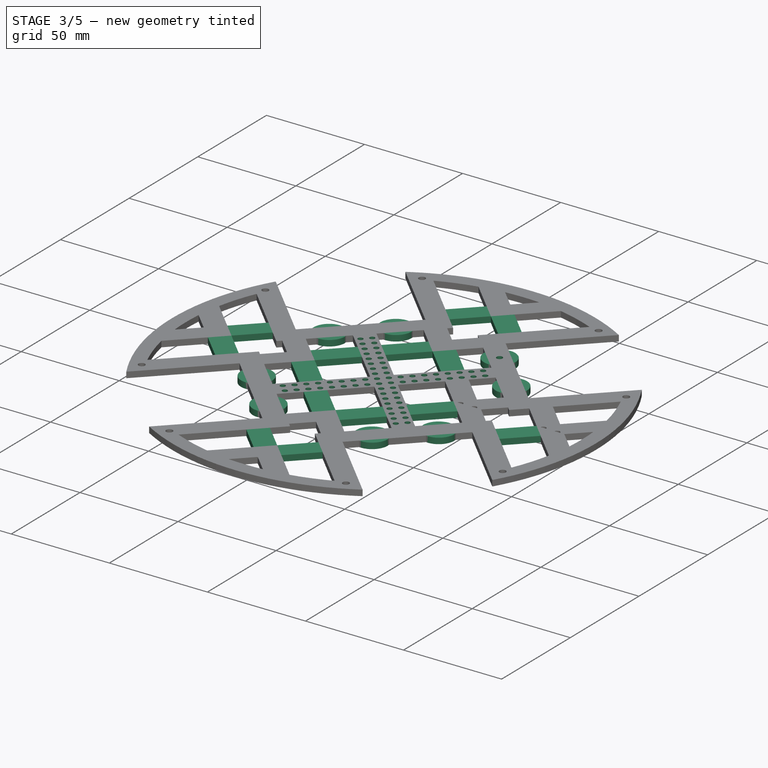
[diagram: stage 3 of 5 — iso view after this stage's code; geometry added in this stage tinted green]
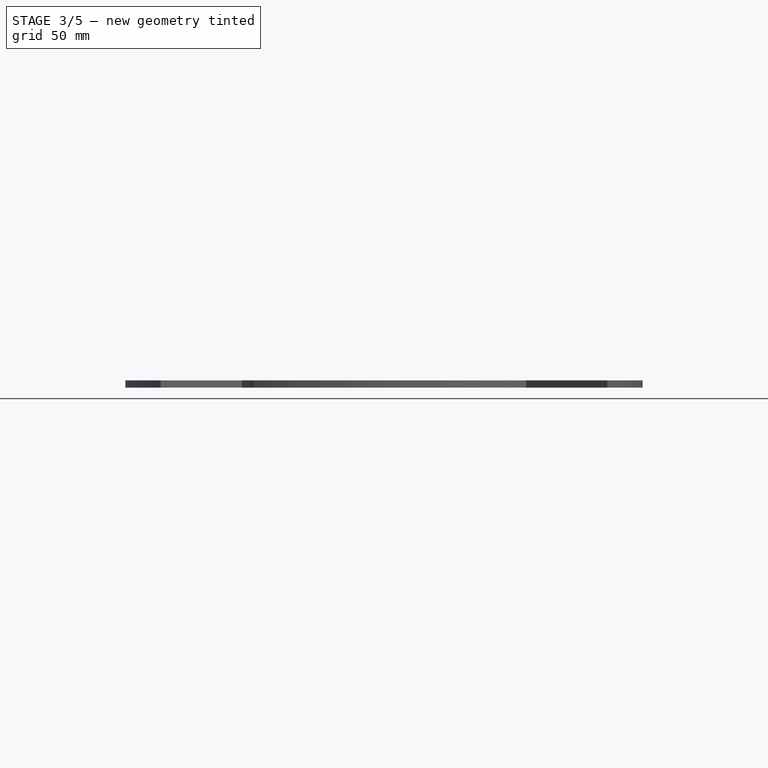
[diagram: stage 3 of 5 — front view after this stage's code; geometry added in this stage tinted green]
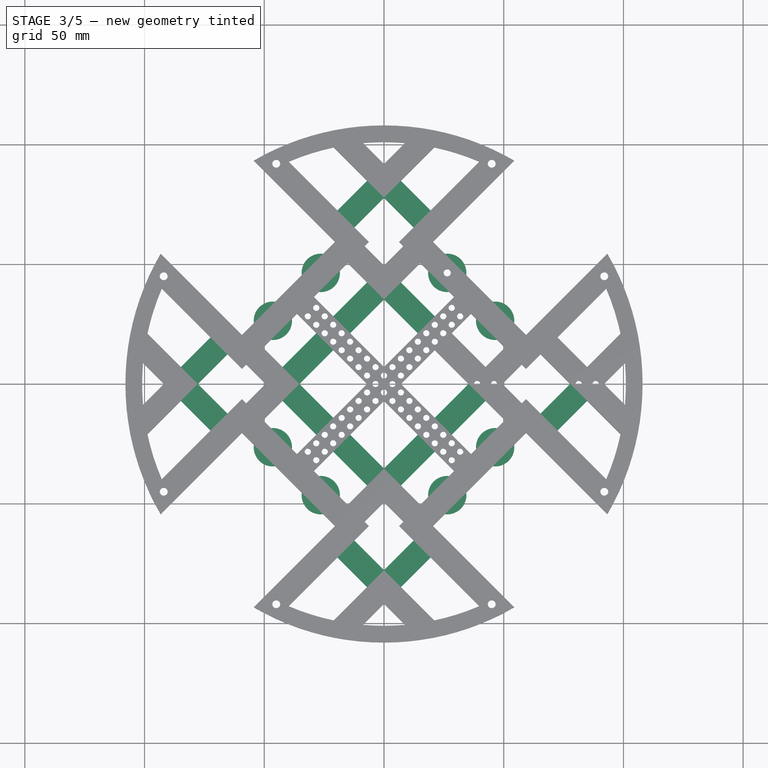
[diagram: stage 3 of 5 — top view after this stage's code; geometry added in this stage tinted green]
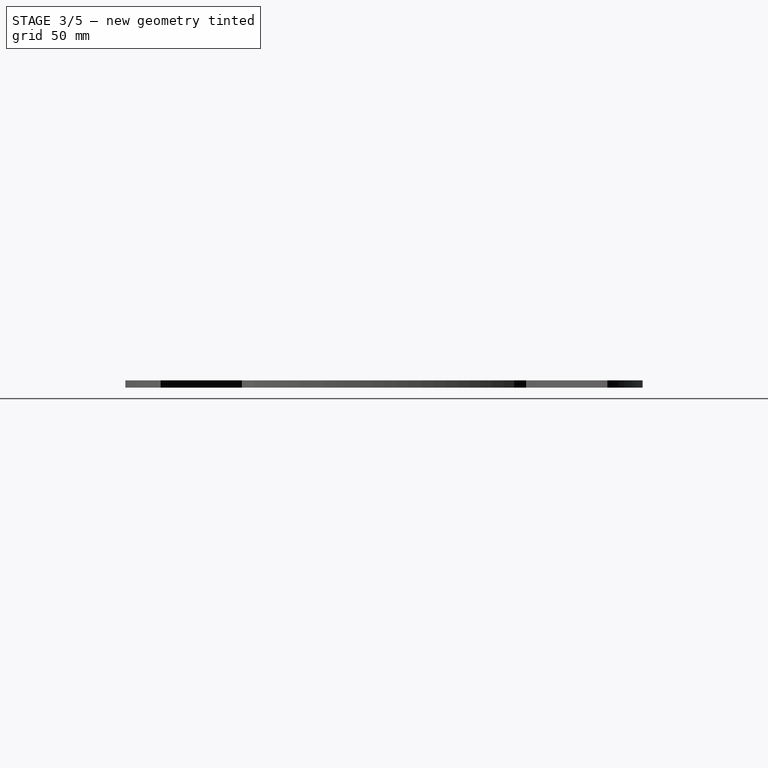
[diagram: stage 3 of 5 — right view after this stage's code; geometry added in this stage tinted green]
FEATURE [PartDesign::Mirrored] Mirrored002
  MirrorPlane = -> Sketch002 [V_Axis]
FEATURE [PartDesign::PolarPattern] PolarPattern003
  Angle = 360
  Axis = -> Sketch002 [N_Axis]
  Occurrences = 4
FEATURE [PartDesign::MultiTransform] MultiTransform002
  BaseFeature = -> MultiTransform001
  Originals = -> [Pad002]
  Transformations = -> [Mirrored002,PolarPattern003]
FEATURE [Sketcher::SketchObject] CopyCopySketch009001  label="CopyCopySketch014"
  Placement = pos=(0,0,0) rot=(1,0,0;3.14159rad)
  expr: Constraints[51] = 2.5 * sqrt(2)
  sketch-geometry (19):
    g0: LineSegment [constr] StartX=0 StartY=0 StartZ=0 EndX=7.07107 EndY=0 EndZ=0
    g1: LineSegment [constr] StartX=7.07107 StartY=0 StartZ=0 EndX=48.0833 EndY=-41.0122 EndZ=0
    g2: LineSegment [constr] StartX=48.0833 StartY=-41.0122 StartZ=0 EndX=41.0122 EndY=-48.0833 EndZ=0
    g3: LineSegment [constr] StartX=41.0122 StartY=-48.0833 StartZ=0 EndX=0 EndY=-7.07107 EndZ=0
    g4: LineSegment [constr] StartX=0 StartY=-7.07107 StartZ=0 EndX=0 EndY=0 EndZ=0
    g5: LineSegment [constr] StartX=35.3553 StartY=0 StartZ=0 EndX=67.1751 EndY=-31.8198 EndZ=0
    g6: LineSegment [constr] StartX=67.1751 StartY=-31.8198 StartZ=0 EndX=74.2462 EndY=-24.7487 EndZ=0
    g7: LineSegment [constr] StartX=74.2462 StartY=-24.7487 StartZ=0 EndX=49.4975 EndY=0 EndZ=0
    g8: LineSegment [constr] StartX=49.4975 StartY=0 StartZ=0 EndX=35.3553 EndY=0 EndZ=0
    g9: LineSegment [constr] StartX=98.9949 StartY=-21.2132 StartZ=0 EndX=106.066 EndY=-14.1421 EndZ=0
    g10: LineSegment [constr] StartX=106.066 StartY=-14.1421 StartZ=0 EndX=91.9239 EndY=0 EndZ=0
    g11: LineSegment [constr] StartX=91.9239 StartY=0 StartZ=0 EndX=77.7817 EndY=0 EndZ=0
    g12: LineSegment [constr] StartX=77.7817 StartY=0 StartZ=0 EndX=98.9949 EndY=-21.2132 EndZ=0
    g13: LineSegment [constr] StartX=91.9239 StartY=0 StartZ=0 EndX=84.8528 EndY=-7.07107 EndZ=0
    g14: LineSegment [constr] StartX=21.2132 StartY=-14.1421 StartZ=0 EndX=35.3553 EndY=0 EndZ=0
    g15: LineSegment [constr] StartX=77.7817 StartY=0 StartZ=0 EndX=63.6396 EndY=-14.1421 EndZ=0
    g16: LineSegment [constr] StartX=0 StartY=0 StartZ=0 EndX=707.107 EndY=-707.107 EndZ=0
    g17: Circle CenterX=3.53553 CenterY=0 CenterZ=0 NormalX=0 NormalY=0 NormalZ=1 AngleXU=0 Radius=1.3
    g18: LineSegment [constr] StartX=3.53553 StartY=0 StartZ=0 EndX=10.6066 EndY=-7.07107 EndZ=0
  constraints (56):
    c: Coincident(g0,g1)
    c: Coincident(g1,g2)
    c: Coincident(g2,g3)
    c: Coincident(g3,g4)
    c: Coincident(g4,g0)
    c: Coincident(g4,g-1)
    c: PointOnObject(g0,g-1)
    c: PointOnObject(g3,g-2)
    c: Parallel(g1,g3)
    c: Perpendicular(g3,g2)
    c: Angle(g1) = -0.785398
    c: Equal(g0,g4)
    c: Distance(g2) = 10
    c: Distance(g1) = 58
    c: Coincident(g5,g6)
    c: Coincident(g6,g7)
    c: Coincident(g7,g8)
    c: Coincident(g5,g8)
    c: PointOnObject(g5,g-1)
    c: PointOnObject(g7,g-1)
    c: Parallel(g7,g5)
    c: Parallel(g5,g1)
    c: Parallel(g6,g2)
    c: Coincident(g12,g9)
    c: Coincident(g9,g10)
    c: Coincident(g10,g11)
    c: Coincident(g12,g11)
    c: PointOnObject(g11,g-1)
    c: PointOnObject(g10,g-1)
    c: Parallel(g10,g12)
    c: Parallel(g12,g7)
    c: Coincident(g13,g10)
    c: PointOnObject(g13,g12)
    c: Perpendicular(g12,g13)
    c: Equal(g13,g6)
    c: Equal(g6,g2)
    c: Coincident(g14,g5)
    c: PointOnObject(g14,g1)
    c: Perpendicular(g14,g5)
    c: PointOnObject(g15,g7)
    c: Coincident(g15,g11)
    c: Perpendicular(g7,g15)
    c: Coincident(g16,g0)
    c: Distance(g16) = 1000
    c: Parallel(g16,g1)
    c: Equal(g15,g14)
    c: Distance(g14) = 20
    c: Distance(g7) = 35
    c: Distance(g10) = 20
    c: Parallel(g9,g6)
    c: PointOnObject(g17,g0)
    c: DistanceX(g17) = 3.53553
    c: Radius(g17) = 1.3
    c: Coincident(g18,g17)
    c: Parallel(g18,g16)
    c: Distance(g18) = 10
FEATURE [PartDesign::Pocket] Pocket006
  BaseFeature = -> MultiTransform002
  Length = 5
  Length2 = 100
  Profile = -> CopyCopySketch009001
  Type = 0
FEATURE [PartDesign::LinearPattern] LinearPattern
  Direction = -> CopyCopySketch009001 [Axis17]
  Length = 40
  Occurrences = 9
FEATURE [PartDesign::Mirrored] Mirrored003
  MirrorPlane = -> CopyCopySketch009001 [V_Axis]
FEATURE [PartDesign::PolarPattern] PolarPattern004
  Angle = 360
  Axis = -> CopyCopySketch009001 [N_Axis]
  Occurrences = 4
FEATURE [PartDesign::MultiTransform] MultiTransform003
  BaseFeature = -> Pocket006
  Originals = -> [Pocket006]
  Transformations = -> [LinearPattern,Mirrored003,PolarPattern004]
FEATURE [Sketcher::SketchObject] Sketch011
  MapMode = 5
  Placement = pos=(0,0,3) rot=(0,0,1;0rad)
  Support = -> [MultiTransform003]
  sketch-geometry (3):
    g0: LineSegment [constr] StartX=0 StartY=0 StartZ=0 EndX=70.7107 EndY=70.7107 EndZ=0
    g1: Circle CenterX=26.4104 CenterY=46.4216 CenterZ=0 NormalX=0 NormalY=0 NormalZ=1 AngleXU=0 Radius=1.5
    g2: LineSegment [constr] StartX=-70.7107 StartY=70.7107 StartZ=0 EndX=0 EndY=0 EndZ=0
  constraints (9):
    c: Coincident(g0,g-1)
    c: Angle(g0) = 0.785398
    c: Distance(g0) = 100
    c: Coincident(g2,g-1)
    c: Angle(g2) = -0.785398
    c: Equal(g2,g0)
    c: Distance(g1,g0) = 14.15
    c: Distance(g1,g2) = 51.5
    c: Radius(g1) = 1.5
FEATURE [Sketcher::SketchObject] Sketch012
  MapMode = 5
  Placement = pos=(0,0,3) rot=(0,0,1;0rad)
  Support = -> [MultiTransform003]
  expr: Constraints[8] = 8
  sketch-geometry (3):
    g0: LineSegment [constr] StartX=0 StartY=0 StartZ=0 EndX=70.7107 EndY=70.7107 EndZ=0
    g1: Circle CenterX=26.4104 CenterY=46.4216 CenterZ=0 NormalX=0 NormalY=0 NormalZ=1 AngleXU=0 Radius=8
    g2: LineSegment [constr] StartX=-70.7107 StartY=70.7107 StartZ=0 EndX=0 EndY=0 EndZ=0
  constraints (9):
    c: Coincident(g0,g-1)
    c: Angle(g0) = 0.785398
    c: Distance(g0) = 100
    c: Coincident(g2,g-1)
    c: Angle(g2) = -0.785398
    c: Equal(g2,g0)
    c: Distance(g1,g0) = 14.15
    c: Distance(g1,g2) = 51.5
    c: Radius(g1) = 8
FEATURE [Sketcher::SketchObject] CopySketch012
  Placement = pos=(0,0,3) rot=(0,0,1;0rad)
  expr: Constraints[8] = 8
  sketch-geometry (3):
    g0: LineSegment [constr] StartX=0 StartY=0 StartZ=0 EndX=70.7107 EndY=70.7107 EndZ=0
    g1: Circle CenterX=26.4104 CenterY=46.4216 CenterZ=0 NormalX=0 NormalY=0 NormalZ=1 AngleXU=0 Radius=8
    g2: LineSegment [constr] StartX=-70.7107 StartY=70.7107 StartZ=0 EndX=0 EndY=0 EndZ=0
  constraints (9):
    c: Coincident(g0,g-1)
    c: Angle(g0) = 0.785398
    c: Distance(g0) = 100
    c: Coincident(g2,g-1)
    c: Angle(g2) = -0.785398
    c: Equal(g2,g0)
    c: Distance(g1,g0) = 14.15
    c: Distance(g1,g2) = 51.5
    c: Radius(g1) = 8
FEATURE [PartDesign::Pad] Pad003
  BaseFeature = -> MultiTransform003
  Length = 3
  Length2 = 100
  Profile = -> CopySketch012
  Reversed = true
  Type = 0
FEATURE [PartDesign::Mirrored] Mirrored004
  MirrorPlane = -> CopySketch012 [V_Axis]
FEATURE [PartDesign::PolarPattern] PolarPattern005
  Angle = 360
  Axis = -> CopySketch012 [N_Axis]
  Occurrences = 4
FEATURE [PartDesign::MultiTransform] MultiTransform004
  BaseFeature = -> Pad003
  Originals = -> [Pad003]
  Transformations = -> [Mirrored004,PolarPattern005]
FEATURE [PartDesign::Pocket] Pocket007
  BaseFeature = -> MultiTransform004
  Length = 5
  Length2 = 100
  Profile = -> Sketch011
  Type = 0
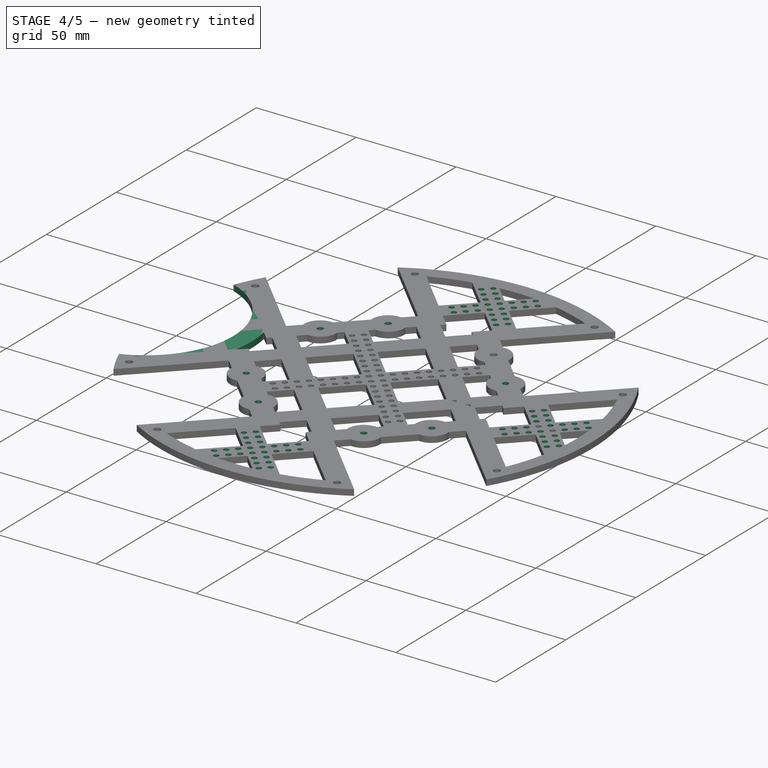
[diagram: stage 4 of 5 — iso view after this stage's code; geometry added in this stage tinted green]
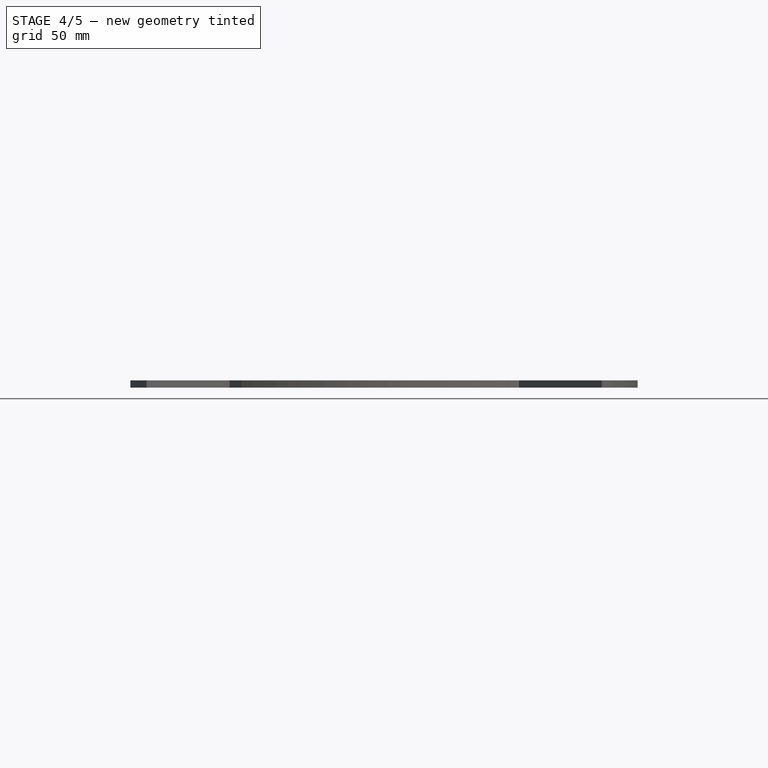
[diagram: stage 4 of 5 — front view after this stage's code; geometry added in this stage tinted green]
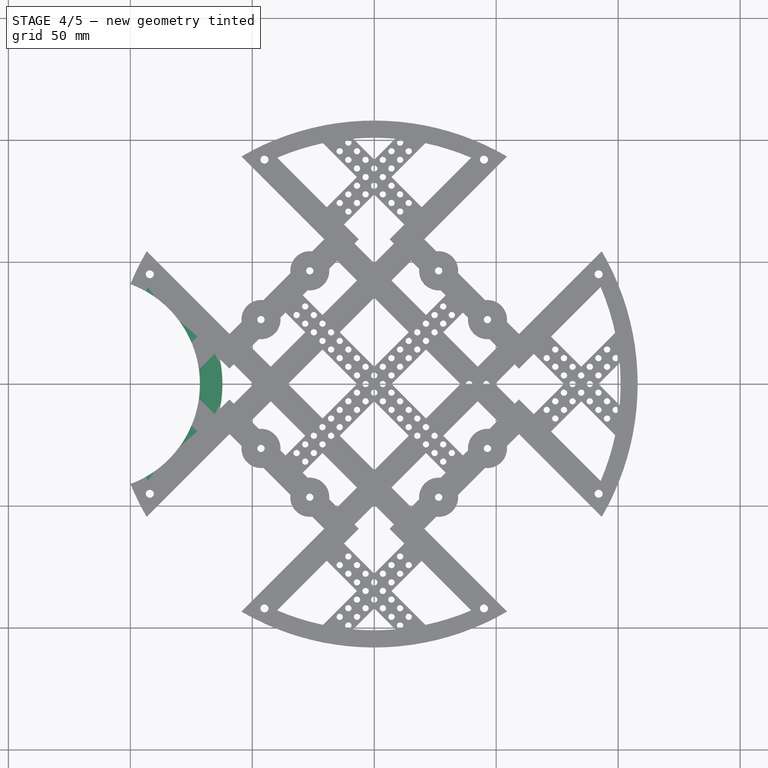
[diagram: stage 4 of 5 — top view after this stage's code; geometry added in this stage tinted green]
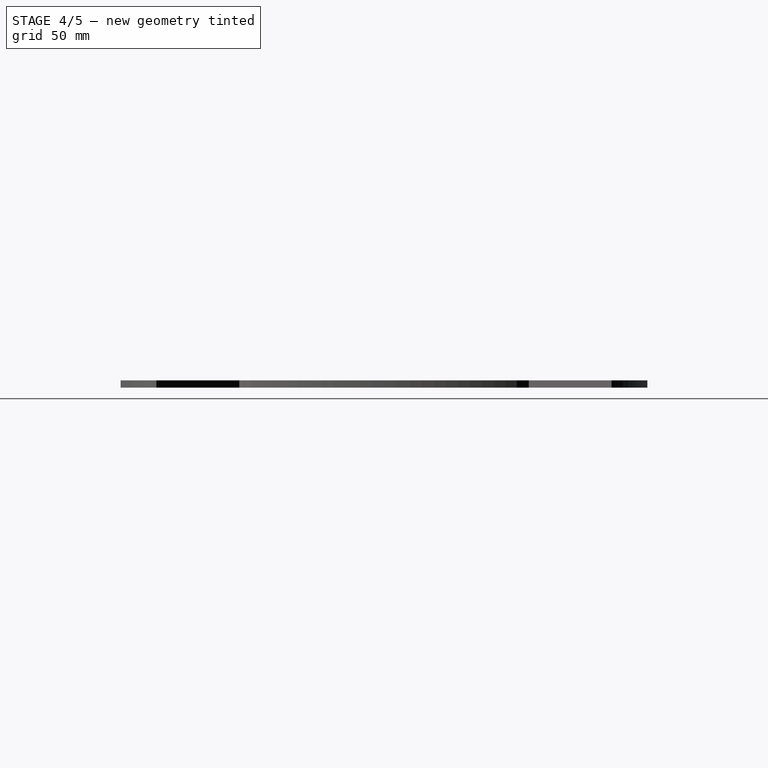
[diagram: stage 4 of 5 — right view after this stage's code; geometry added in this stage tinted green]
FEATURE [PartDesign::Mirrored] Mirrored005
  MirrorPlane = -> Sketch011 [V_Axis]
FEATURE [PartDesign::PolarPattern] PolarPattern006
  Angle = 360
  Axis = -> Sketch011 [N_Axis]
  Occurrences = 4
FEATURE [PartDesign::MultiTransform] MultiTransform005
  BaseFeature = -> Pocket007
  Originals = -> [Pocket007]
  Transformations = -> [Mirrored005,PolarPattern006]
FEATURE [PartDesign::LinearPattern] LinearPattern001
  Direction = -> CopyCopySketch010001 [Axis17]
  Length = 20
  Occurrences = 5
  Reversed = true
FEATURE [PartDesign::LinearPattern] LinearPattern002
  Direction = -> CopyCopySketch010001 [Axis17]
  Length = 15
  Occurrences = 4
FEATURE [PartDesign::Mirrored] Mirrored006
  MirrorPlane = -> CopyCopySketch010001 [V_Axis]
FEATURE [PartDesign::PolarPattern] PolarPattern007
  Angle = 360
  Axis = -> CopyCopySketch010001 [N_Axis]
  Occurrences = 4
FEATURE [PartDesign::MultiTransform] MultiTransform006
  BaseFeature = -> MultiTransform005
  Originals = -> [Pocket003]
  Transformations = -> [LinearPattern001,LinearPattern002,Mirrored006,PolarPattern007]
FEATURE [PartDesign::MultiTransform] MultiTransform007
  BaseFeature = -> MultiTransform006
  Originals = -> [Pocket004]
FEATURE [PartDesign::LinearPattern] LinearPattern003
  Direction = -> CopyCopySketch010002 [Axis17]
  Length = 20
  Occurrences = 5
FEATURE [PartDesign::LinearPattern] LinearPattern004
  Direction = -> CopyCopySketch010002 [Axis17]
  Length = 15
  Occurrences = 4
  Reversed = true
FEATURE [PartDesign::Mirrored] Mirrored007
  MirrorPlane = -> CopyCopySketch010002 [V_Axis]
FEATURE [PartDesign::PolarPattern] PolarPattern008
  Angle = 360
  Axis = -> CopyCopySketch010002 [N_Axis]
  Occurrences = 4
FEATURE [PartDesign::MultiTransform] MultiTransform008
  BaseFeature = -> MultiTransform007
  Originals = -> [Pocket004]
  Transformations = -> [LinearPattern003,LinearPattern004,Mirrored007,PolarPattern008]
FEATURE [PartDesign::Pocket] Pocket008
  BaseFeature = -> MultiTransform008
  Length = 5
  Length2 = 100
  Profile = -> Sketch005
  Type = 0
FEATURE [PartDesign::Pad] Pad004
  BaseFeature = -> Pocket008
  Length = 3
  Length2 = 100
  Profile = -> Sketch006
  Reversed = true
  Type = 0
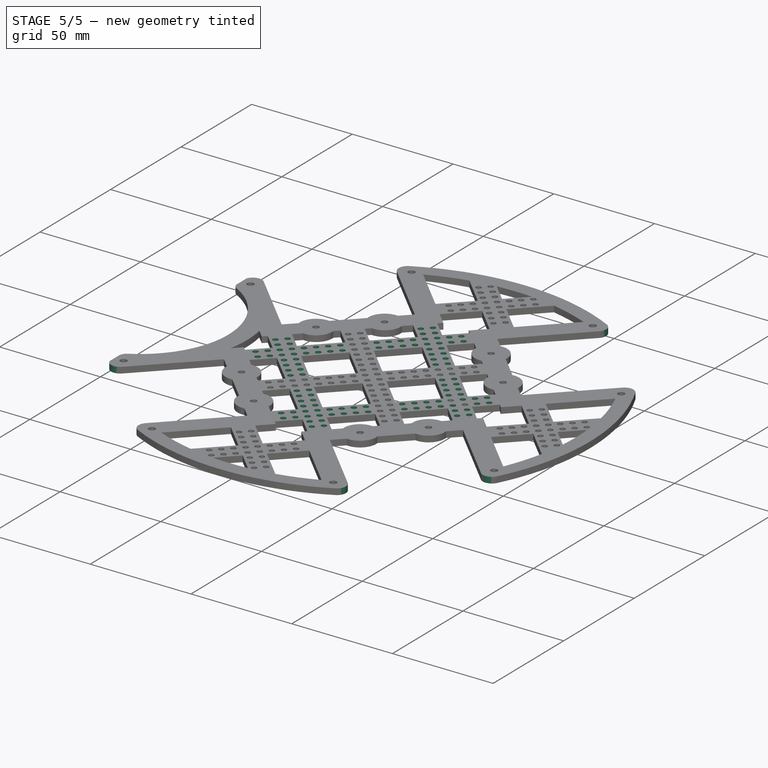
[diagram: stage 5 of 5 — iso view after this stage's code; geometry added in this stage tinted green]
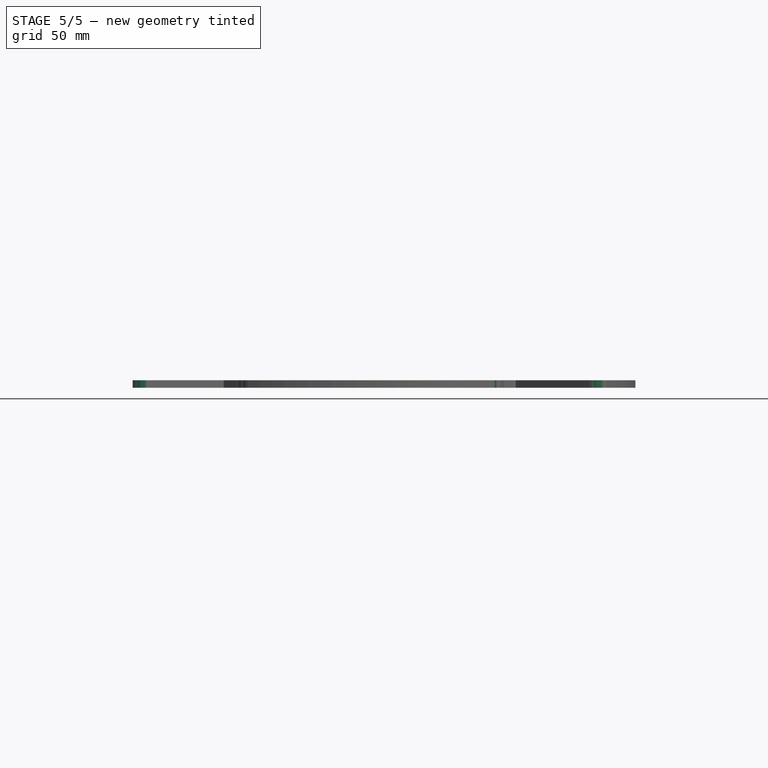
[diagram: stage 5 of 5 — front view after this stage's code; geometry added in this stage tinted green]
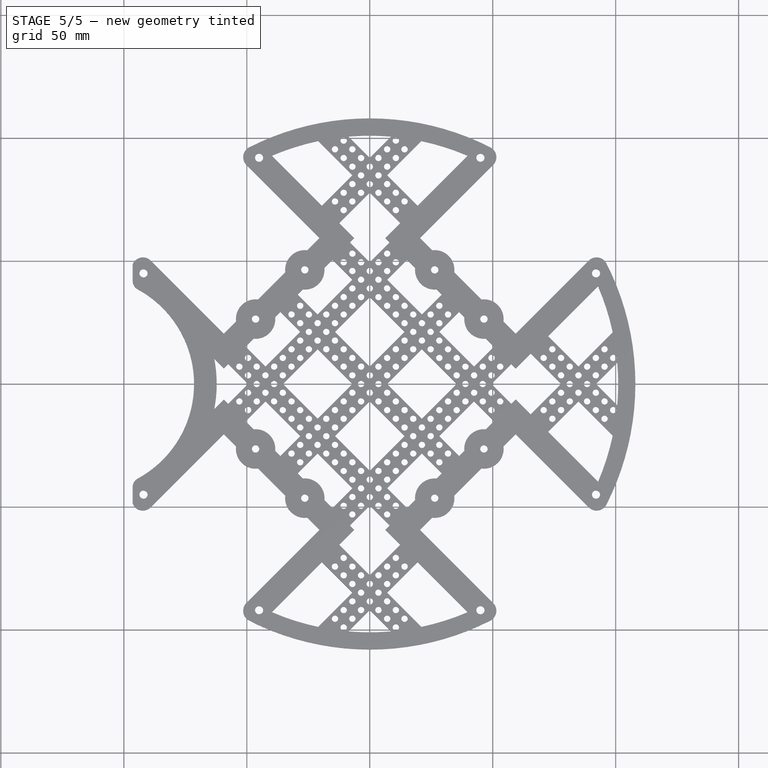
[diagram: stage 5 of 5 — top view after this stage's code; geometry added in this stage tinted green]
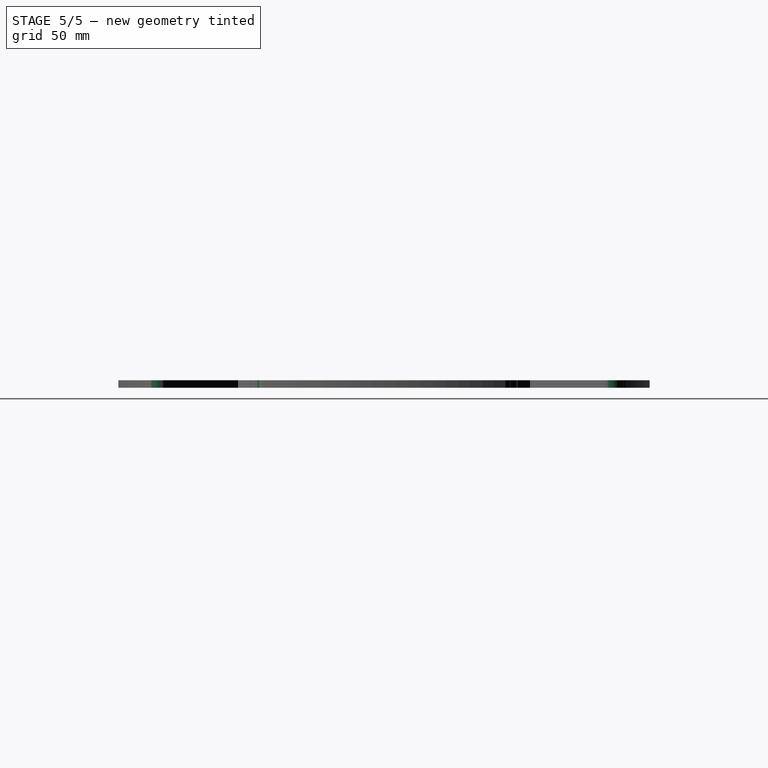
[diagram: stage 5 of 5 — right view after this stage's code; geometry added in this stage tinted green]
FEATURE [Sketcher::SketchObject] Sketch013
  MapMode = 5
  Placement = pos=(0,0,3) rot=(0,0,1;0rad)
  Support = -> [Pad004]
  sketch-geometry (4):
    g0: LineSegment StartX=-113.102 StartY=52.2143 StartZ=0 EndX=-96.4262 EndY=52.2143 EndZ=0
    g1: LineSegment StartX=-96.4262 StartY=52.2143 StartZ=0 EndX=-96.4262 EndY=-52.262 EndZ=0
    g2: LineSegment StartX=-96.4262 StartY=-52.262 StartZ=0 EndX=-113.102 EndY=-52.262 EndZ=0
    g3: LineSegment StartX=-113.102 StartY=-52.262 StartZ=0 EndX=-113.102 EndY=52.2143 EndZ=0
  constraints (8):
    c: Coincident(g0,g1)
    c: Coincident(g1,g2)
    c: Coincident(g2,g3)
    c: Coincident(g3,g0)
    c: Horizontal(g0)
    c: Horizontal(g2)
    c: Vertical(g1)
    c: Vertical(g3)
FEATURE [PartDesign::Pocket] Pocket009
  BaseFeature = -> Pad004
  Length = 5
  Length2 = 100
  Profile = -> Sketch013
  Type = 0
FEATURE [PartDesign::MultiTransform] MultiTransform009
  BaseFeature = -> Pocket009
  Originals = -> [Pocket004]
FEATURE [PartDesign::LinearPattern] LinearPattern005
  Direction = -> CopyCopySketch010 [Axis17]
  Length = 15
  Occurrences = 4
FEATURE [PartDesign::LinearPattern] LinearPattern006
  Direction = -> CopyCopySketch010 [Axis17]
  Length = 20
  Occurrences = 5
  Reversed = true
FEATURE [PartDesign::Mirrored] Mirrored008
  MirrorPlane = -> CopyCopySketch010 [V_Axis]
FEATURE [PartDesign::PolarPattern] PolarPattern009
  Angle = 360
  Axis = -> CopyCopySketch010 [N_Axis]
  Occurrences = 4
FEATURE [PartDesign::MultiTransform] MultiTransform010
  BaseFeature = -> MultiTransform009
  Originals = -> [Pocket002]
  Transformations = -> [LinearPattern005,LinearPattern006,Mirrored008,PolarPattern009]
FEATURE [PartDesign::LinearPattern] LinearPattern007
  Direction = -> CopyCopySketch010003 [Axis17]
  Length = 25
  Occurrences = 6
FEATURE [PartDesign::LinearPattern] LinearPattern008
  Direction = -> CopyCopySketch010003 [Axis17]
  Length = 10
  Occurrences = 3
  Reversed = true
FEATURE [PartDesign::Mirrored] Mirrored009
  MirrorPlane = -> CopyCopySketch010003 [V_Axis]
FEATURE [PartDesign::PolarPattern] PolarPattern010
  Angle = 360
  Axis = -> CopyCopySketch010003 [N_Axis]
  Occurrences = 4
FEATURE [PartDesign::MultiTransform] MultiTransform011
  BaseFeature = -> MultiTransform010
  Originals = -> [Pocket005]
  Transformations = -> [LinearPattern007,LinearPattern008,Mirrored009,PolarPattern010]
FEATURE [PartDesign::Fillet] Fillet
  Base = -> MultiTransform011 [Edge1698,Edge1520,Edge665,Edge47,Edge1,Edge807,Edge494,Edge1657]
  BaseFeature = -> MultiTransform011
  Radius = 4.5
FEATURE [PartDesign::Fillet] Fillet001
  Base = -> Fillet [Edge1664,Edge796]
  BaseFeature = -> Fillet
  Radius = 4
FEATURE [PartDesign::Body] Body
  Group = -> [Sketch,Pad,Sketch001,Pad001,Sketch002,Pad002,PolarPattern,Sketch005,Sketch008,Pocket,MultiTransform,Mirrored,PolarPattern001,Pocket001,Pocket002,Pocket003,Pocket004,Pocket005,MultiTransform001,Mirrored001,PolarPattern002,MultiTransform002,Mirrored002,PolarPattern003,Pocket006,MultiTransform003,LinearPattern,Mirrored003,PolarPattern004,Sketch011,Pad003,MultiTransform004,Mirrored004,PolarPattern005,+32 more]
  Origin = -> Origin
  Tip = -> Fillet001
FEATURE [App::MeasureDistance] Distance  label="Distance: 20,00 mm"
  Distance = 20
  P1 = (14.1421,-21.2132,3)
  P2 = (1e-15,-7.07107,3)
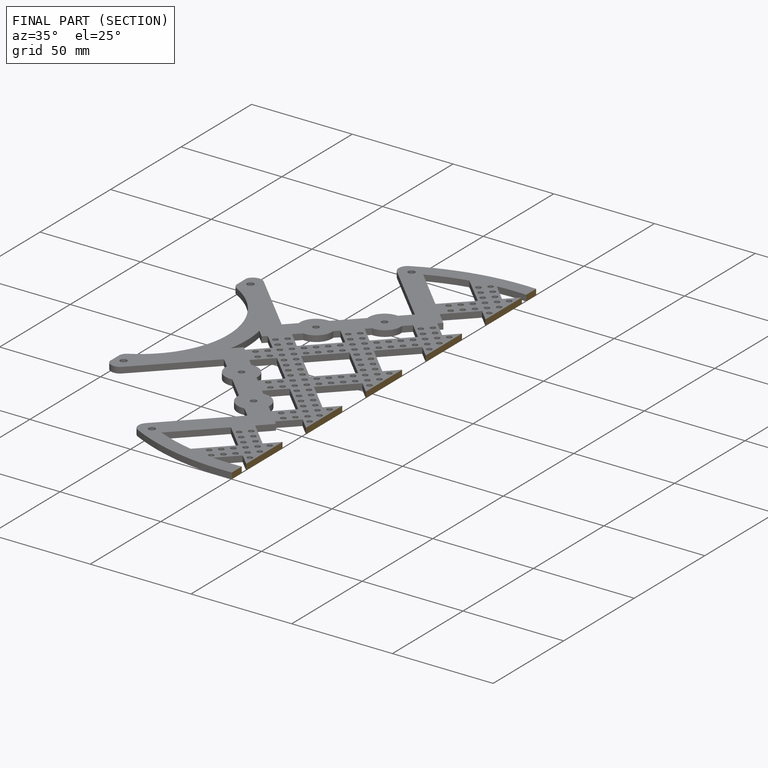
[diagram: finished part — half-section view (interior)]
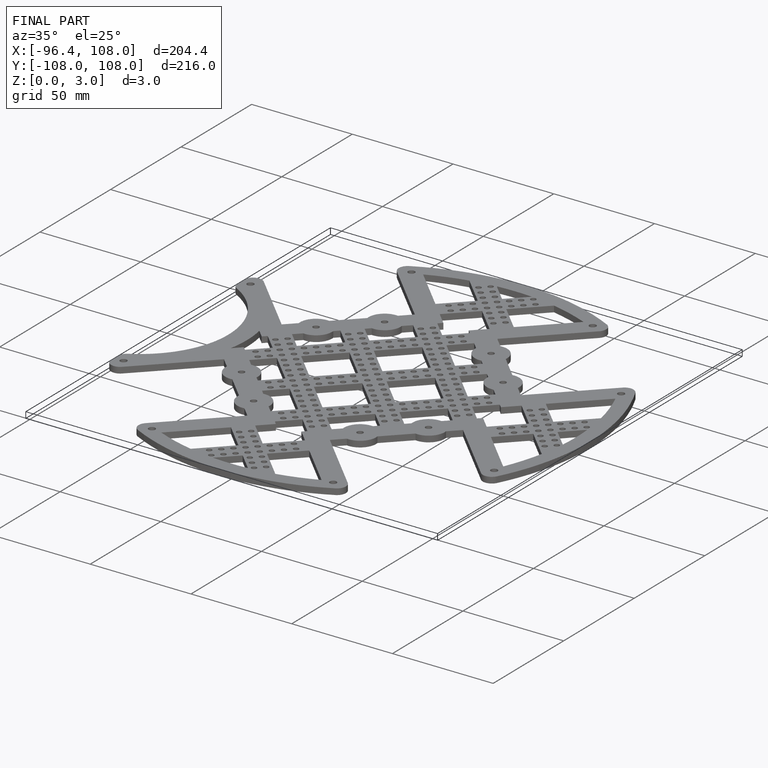
[diagram: finished part — iso view with bounding-box wireframe]
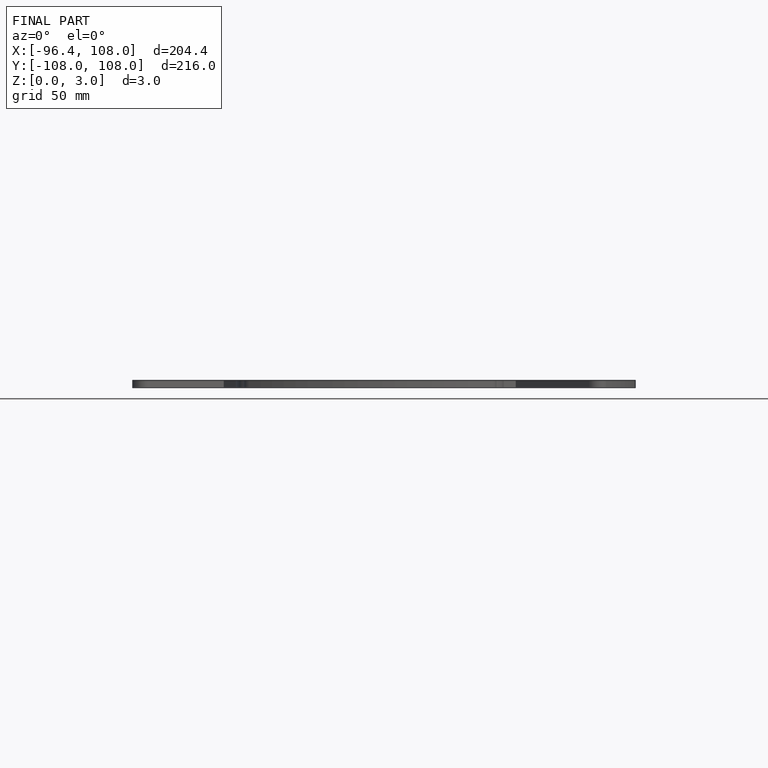
[diagram: finished part — front view with bounding-box wireframe]
